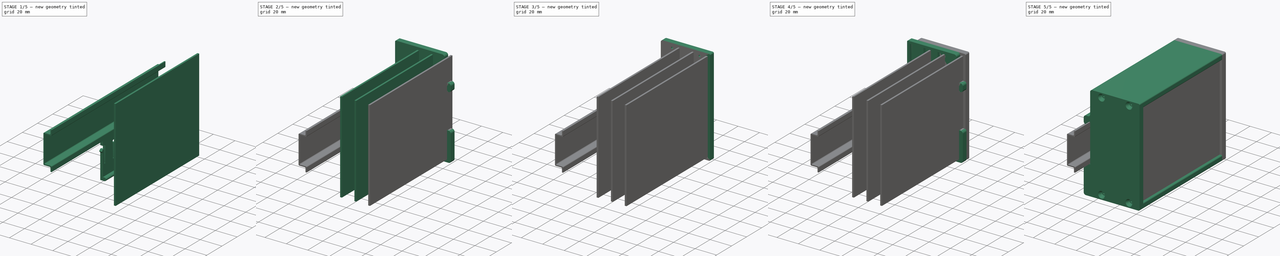
[diagram: build sequence overview — one tinted view per stage of 5, left to right]
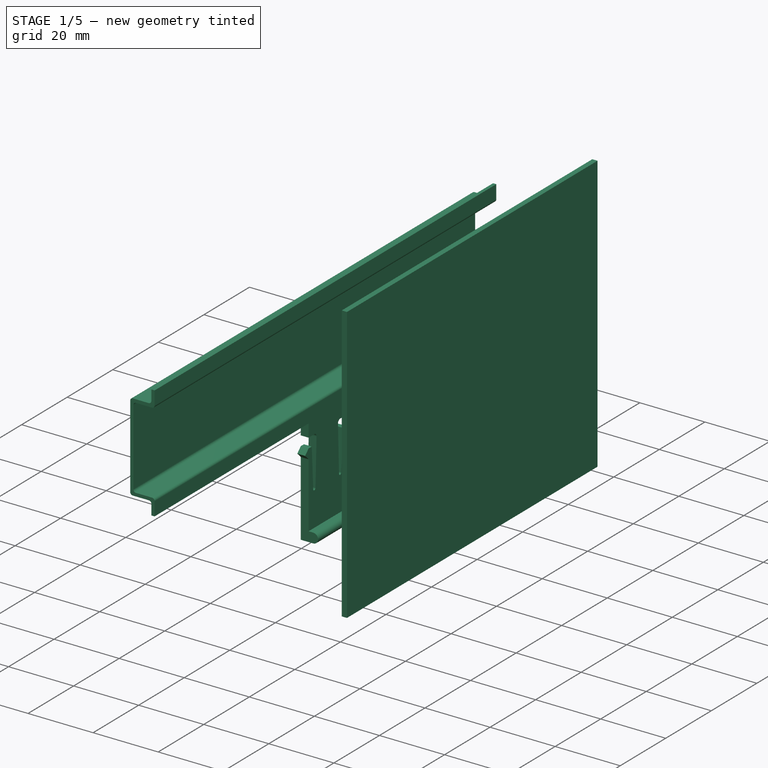
[diagram: stage 1 of 5 — iso view after this stage's code; geometry added in this stage tinted green]
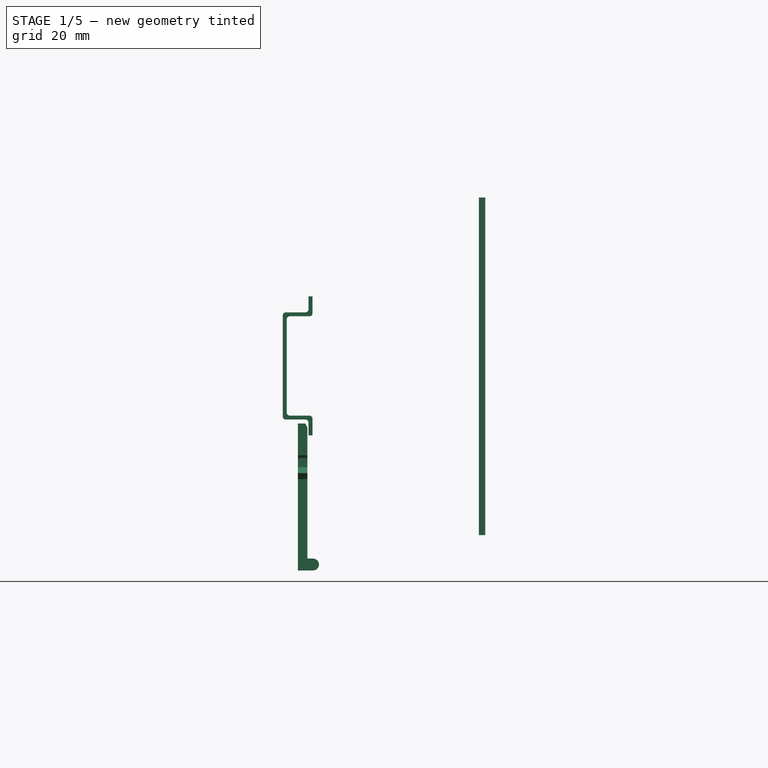
[diagram: stage 1 of 5 — front view after this stage's code; geometry added in this stage tinted green]
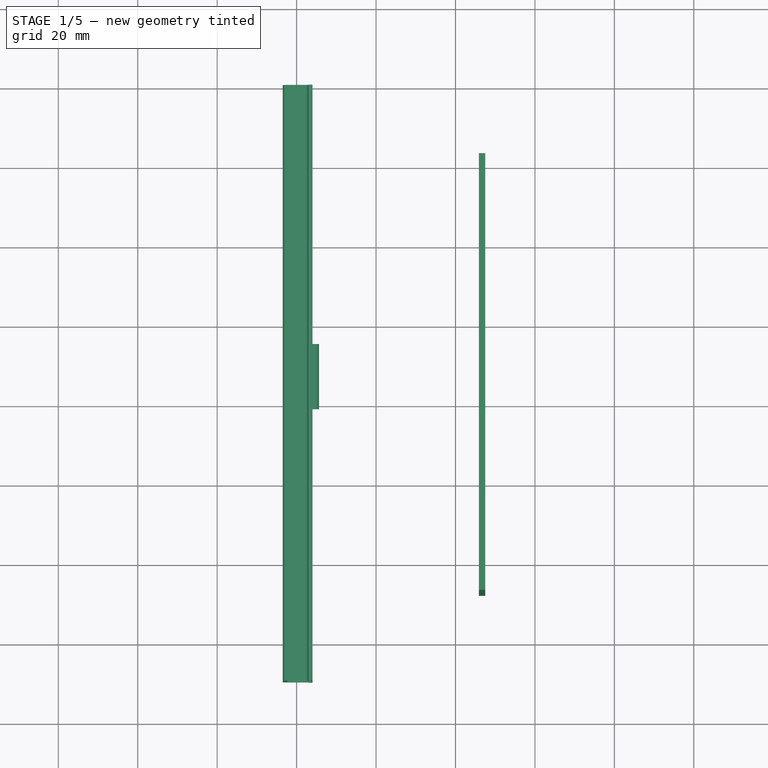
[diagram: stage 1 of 5 — top view after this stage's code; geometry added in this stage tinted green]
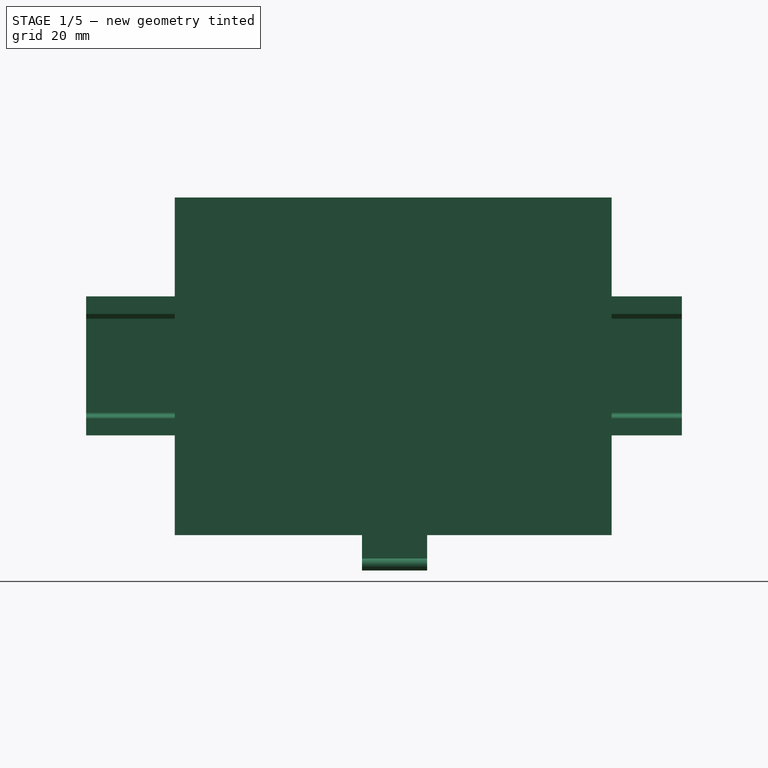
[diagram: stage 1 of 5 — right view after this stage's code; geometry added in this stage tinted green]
FCSTD DOCUMENT  (FreeCAD 0.19R24291 (Git))
Label: Корпус на DIN рейку
License: All rights reserved
LicenseURL: http://en.wikipedia.org/wiki/All_rights_reserved
objects: Sketcher::SketchObject×21, Part::Extrusion×13, Part::Cut×12, Part::Revolution×8, Part::MultiFuse×1
note: 55 computed .brp shape members not serialized (recipe doc carries the construction recipe); baked Part::Feature solids carry a one-line shape summary decoded from their .brp

FEATURE [Sketcher::SketchObject] Sketch020
  FullyConstrained = false
  Placement = pos=(0,0,0) rot=(0.57735,0.57735,0.57735;2.0944rad)
  sketch-geometry (4):
    g0: LineSegment StartX=17.5023 StartY=-36.9981 StartZ=0 EndX=127.502 EndY=-36.9981 EndZ=0
    g1: LineSegment StartX=127.502 StartY=-36.9981 StartZ=0 EndX=127.502 EndY=48.0019 EndZ=0
    g2: LineSegment StartX=127.502 StartY=48.0019 StartZ=0 EndX=17.5023 EndY=48.0019 EndZ=0
    g3: LineSegment StartX=17.5023 StartY=48.0019 StartZ=0 EndX=17.5023 EndY=-36.9981 EndZ=0
  constraints (11):
    c: Horizontal(g0)
    c: Coincident(g1,g0)
    c: Vertical(g1)
    c: Coincident(g2,g1)
    c: Horizontal(g2)
    c: Coincident(g3,g0)
    c: Vertical(g3)
    c: Equal(g3,g1)
    c: Equal(g2,g0)
    c: Distance(g3) = 85
    c: Distance(g2) = 110
FEATURE [Part::Extrusion] Extrude008  label="плата 3"
  Base = -> Sketch020
  Dir = (1,0,0)
  DirMode = 2
  FaceMakerClass = Part::FaceMakerBullseye
  LengthFwd = 1.6
  LengthRev = 0
  Placement = pos=(45.9,-125.33,39.5) rot=(0,0,1;0rad)
  Solid = true
  Symmetric = false
FEATURE [Sketcher::SketchObject] Sketch002
  FullyConstrained = false
  Placement = pos=(0,0,0) rot=(0.57735,0.57735,0.57735;2.0944rad)
  sketch-geometry (4):
    g0: LineSegment StartX=0 StartY=0 StartZ=0 EndX=3 EndY=0 EndZ=0
    g1: LineSegment StartX=3 StartY=0 StartZ=0 EndX=3 EndY=3.9 EndZ=0
    g2: LineSegment StartX=0 StartY=0 StartZ=0 EndX=0 EndY=3.9 EndZ=0
    g3: ArcOfCircle CenterX=1.5 CenterY=3.82014 CenterZ=0 NormalX=0 NormalY=0 NormalZ=1 AngleXU=0 Radius=1.50212 StartAngle=0.0531869 EndAngle=3.08841
  constraints (11):
    c: PointOnObject(g0,g-1)
    c: Coincident(g1,g0)
    c: Vertical(g1)
    c: Vertical(g2)
    c: Coincident(g3,g1)
    c: Distance(g2) = 3.9
    c: Distance(g1) = 3.9
    c: Distance(g0) = 3
    c: Coincident(g3,g2)
    c: Coincident(g2,g0)
    c: Coincident(g0,g-1)
FEATURE [Sketcher::SketchObject] Sketch021
  FullyConstrained = false
  Placement = pos=(0,0,0) rot=(0.57735,0.57735,0.57735;2.0944rad)
  sketch-geometry (6):
    g0: GeomPoint X=-1.0022 Y=2.4 Z=0
    g1: LineSegment StartX=0 StartY=1.9 StartZ=0 EndX=-1.0022 EndY=2.4 EndZ=0
    g2: LineSegment StartX=-1.0022 StartY=2.4 StartZ=0 EndX=0 EndY=2.4 EndZ=0
    g3: LineSegment StartX=0 StartY=2.4 StartZ=0 EndX=2.26875 EndY=2.4 EndZ=0
    g4: LineSegment StartX=0 StartY=1.9 StartZ=0 EndX=2.26875 EndY=1.9 EndZ=0
    g5: LineSegment StartX=2.26875 StartY=1.9 StartZ=0 EndX=2.26875 EndY=2.4 EndZ=0
  constraints (12):
    c: Coincident(g1,g0)
    c: Coincident(g2,g1)
    c: Horizontal(g2)
    c: Distance(g1) = 1.12
    c: Coincident(g3,g2)
    c: Horizontal(g3)
    c: Coincident(g4,g1)
    c: Horizontal(g4)
    c: Coincident(g5,g4)
    c: Vertical(g5)
    c: Coincident(g5,g3)
    c: Distance(g5) = 0.5
FEATURE [Part::Extrusion] Extrude009
  Base = -> Sketch021
  Dir = (1,0,0)
  DirMode = 2
  FaceMakerClass = Part::FaceMakerBullseye
  LengthFwd = 20
  LengthRev = 0
  Placement = pos=(0,37,0) rot=(0,0,1;0rad)
  Solid = true
  Symmetric = false
FEATURE [Part::Extrusion] Extrude011
  Base = -> Sketch002
  Dir = (1,0,0)
  DirMode = 2
  FaceMakerClass = Part::FaceMakerBullseye
  LengthFwd = 16.4
  LengthRev = 0
  Solid = true
  Symmetric = false
FEATURE [Sketcher::SketchObject] Sketch022
  FullyConstrained = false
  sketch-geometry (25):
    g0: LineSegment StartX=16.4 StartY=23 StartZ=0 EndX=17.8991 EndY=24.4991 EndZ=0
    g1: LineSegment StartX=17.8991 StartY=24.4991 StartZ=0 EndX=16.4 EndY=25.9981 EndZ=0
    g2: LineSegment StartX=16.4 StartY=25.9981 StartZ=0 EndX=15 EndY=25.9981 EndZ=0
    g3: LineSegment StartX=15 StartY=25.9981 StartZ=0 EndX=14.3657 EndY=13.8947 EndZ=0
    g4: GeomPoint X=13.3657 Y=13.8947 Z=0
    g5: GeomPoint X=13.8657 Y=13.8947 Z=0
    g6: ArcOfCircle CenterX=13.8657 CenterY=13.8947 CenterZ=0 NormalX=0 NormalY=0 NormalZ=1 AngleXU=0 Radius=0.5 StartAngle=3.14159 EndAngle=6.28319
    g7: LineSegment StartX=13.3657 StartY=13.8947 StartZ=0 EndX=12.9 EndY=27.9971 EndZ=0
    g8: GeomPoint X=16.4 Y=28.9971 Z=0
    g9: LineSegment StartX=16.4 StartY=28.9971 StartZ=0 EndX=13.9 EndY=28.9971 EndZ=0
    g10: LineSegment StartX=16.4 StartY=28.9971 StartZ=0 EndX=16.4 EndY=36.9971 EndZ=0
    g11: LineSegment StartX=16.4 StartY=36.9971 StartZ=0 EndX=1.07e-14 EndY=36.9971 EndZ=0
    g12: ArcOfCircle CenterX=13.9 CenterY=27.9971 CenterZ=0 NormalX=0 NormalY=0 NormalZ=1 AngleXU=0 Radius=1 StartAngle=1.5708 EndAngle=3.14159
    g13: LineSegment StartX=1.07e-14 StartY=36.9971 StartZ=0 EndX=1.07e-14 EndY=28.9971 EndZ=0
    g14: LineSegment StartX=2.5 StartY=28.9971 StartZ=0 EndX=1.07e-14 EndY=28.9971 EndZ=0
    g15: ArcOfCircle CenterX=2.5 CenterY=27.9971 CenterZ=0 NormalX=0 NormalY=0 NormalZ=1 AngleXU=0 Radius=1 StartAngle=0 EndAngle=1.5708
    g16: LineSegment StartX=3.03431 StartY=13.8947 StartZ=0 EndX=3.5 EndY=27.9971 EndZ=0
    g17: LineSegment StartX=0 StartY=23 StartZ=0 EndX=-1.49907 EndY=24.4991 EndZ=0
    g18: LineSegment StartX=-1.49907 StartY=24.4991 StartZ=0 EndX=7e-16 EndY=25.9981 EndZ=0
    g19: LineSegment StartX=1.4 StartY=25.9981 StartZ=0 EndX=7e-16 EndY=25.9981 EndZ=0
    g20: LineSegment StartX=1.4 StartY=25.9981 StartZ=0 EndX=2.03431 EndY=13.8947 EndZ=0
    g21: ArcOfCircle CenterX=2.53431 CenterY=13.8947 CenterZ=0 NormalX=0 NormalY=0 NormalZ=1 AngleXU=0 Radius=0.5 StartAngle=3.14159 EndAngle=6.28319
    g22: LineSegment StartX=16.4 StartY=23 StartZ=0 EndX=16.4 EndY=0 EndZ=0
    g23: LineSegment StartX=0 StartY=0 StartZ=0 EndX=16.4 EndY=0 EndZ=0
    g24: LineSegment StartX=0 StartY=0 StartZ=0 EndX=0 EndY=23 EndZ=0
  constraints (64):
    c: Coincident(g1,g0)
    c: Coincident(g2,g1)
    c: Coincident(g3,g2)
    c: Coincident(g6,g5)
    c: Coincident(g7,g4)
    c: Coincident(g6,g3)
    c: Coincident(g9,g8)
    c: Coincident(g10,g9)
    c: Coincident(g11,g10)
    c: Coincident(g6,g7)
    c: Coincident(g12,g9)
    c: Coincident(g12,g7)
    c: Coincident(g13,g11)
    c: Coincident(g13,g14)
    c: Coincident(g15,g14)
    c: Coincident(g16,g15)
    c: Coincident(g18,g17)
    c: Coincident(g19,g18)
    c: Coincident(g20,g19)
    c: Coincident(g21,g20)
    c: Coincident(g21,g16)
    c: Coincident(g22,g23)
    c: Coincident(g22,g0)
    c: Coincident(g17,g24)
    c: Horizontal(g23)
    c: Vertical(g22)
    c: Horizontal(g2)
    c: Horizontal(g9)
    c: Vertical(g10)
    c: Horizontal(g11)
    c: Vertical(g13)
    c: Horizontal(g14)
    c: Horizontal(g19)
    c: Vertical(g24)
    c: Angle(g17,g18) = 1.5708
    c: Angle(g1,g0) = 1.5708
    c: Distance(g1) = 2.12
    c: Distance(g0) = 2.12
    c: Distance(g17) = 2.12
    c: Distance(g18) = 2.12
    c: Distance(g14) = 2.5
    c: Distance(g9) = 2.5
    c: Distance(g22) = 23
    c: Distance(g24) = 23
    c: Distance(g19) = 1.4
    c: Distance(g2) = 1.4
    c: Distance(g10) = 8
    c: Distance(g13) = 8
    c: Distance(g11) = 16.4
    c: Angle(g17,g24) = 2.35619
    c: Coincident(g23,g24)
    c: Coincident(g23,g-1)
    c: Radius(g6) = 0.5
    c: Radius(g21) = 0.5
    c: Distance(g7) = 14.11
    c: Distance(g3) = 12.12
    c: Distance(g20) = 12.12
    c: Distance(g16) = 14.11
    c: Radius(g15) = 1
    c: Radius(g12) = 1
    c: Angle(g19,g20) = 1.62316
    c: Angle(g3,g2) = 1.62316
    c: Distance(g23) = 16.4
    c: Angle(g22,g0) = 2.35619
FEATURE [Part::Extrusion] Extrude010
  Base = -> Sketch022
  Dir = (0,0,1)
  DirMode = 2
  FaceMakerClass = Part::FaceMakerBullseye
  LengthFwd = 2.4
  LengthRev = 0
  Solid = true
  Symmetric = false
FEATURE [Part::Cut] Cut015
  Base = -> Extrude010
  Tool = -> Extrude009
FEATURE [Part::MultiFuse] Fusion  label="защёлка"
  Placement = pos=(0.3,-60.7,-6.4) rot=(0.57735,0.57735,0.57735;2.0944rad)
  Shapes = -> [Cut015,Extrude011]
FEATURE [Sketcher::SketchObject] Sketch023
  FullyConstrained = true
  Placement = pos=(0,0,0) rot=(1,0,0;1.5708rad)
  sketch-geometry (36):
    g0: LineSegment StartX=-1 StartY=35 StartZ=0 EndX=-6.98313e-11 EndY=35 EndZ=0
    g1: LineSegment StartX=-6.98311e-11 StartY=35 StartZ=0 EndX=-6.98311e-11 EndY=30.8 EndZ=0
    g2: LineSegment StartX=-0.8 StartY=30 StartZ=0 EndX=-5.7 EndY=30 EndZ=0
    g3: LineSegment StartX=-1 StartY=35 StartZ=0 EndX=-1 EndY=31.8 EndZ=0
    g4: LineSegment StartX=-1.8 StartY=31 StartZ=0 EndX=-6.7 EndY=31 EndZ=0
    g5: LineSegment StartX=-1.8 StartY=31 StartZ=0 EndX=-1.8 EndY=31.8 EndZ=0
    g6: LineSegment StartX=-1.8 StartY=31.8 StartZ=0 EndX=-1 EndY=31.8 EndZ=0
    g7: ArcOfCircle CenterX=-1.8 CenterY=31.8 CenterZ=0 NormalX=0 NormalY=0 NormalZ=1 AngleXU=0 Radius=0.8 StartAngle=4.71239 EndAngle=6.28319
    g8: ArcOfCircle CenterX=-0.8 CenterY=30.8 CenterZ=0 NormalX=0 NormalY=0 NormalZ=1 AngleXU=0 Radius=0.8 StartAngle=4.71239 EndAngle=6.28319
    g9: LineSegment StartX=-0.8 StartY=30 StartZ=0 EndX=-0.8 EndY=30.8 EndZ=0
    g10: LineSegment StartX=-0.8 StartY=30.8 StartZ=0 EndX=-6.98311e-11 EndY=30.8 EndZ=0
    g11: LineSegment StartX=-5.7 StartY=30 StartZ=0 EndX=-5.7 EndY=29.2 EndZ=0
    g12: LineSegment StartX=-5.7 StartY=29.2 StartZ=0 EndX=-6.5 EndY=29.2 EndZ=0
    g13: LineSegment StartX=-6.7 StartY=31 StartZ=0 EndX=-6.7 EndY=30.2 EndZ=0
    g14: LineSegment StartX=-6.7 StartY=30.2 StartZ=0 EndX=-7.5 EndY=30.2 EndZ=0
    g15: ArcOfCircle CenterX=-6.7 CenterY=30.2 CenterZ=0 NormalX=0 NormalY=0 NormalZ=1 AngleXU=0 Radius=0.8 StartAngle=1.5708 EndAngle=3.14159
    g16: ArcOfCircle CenterX=-5.7 CenterY=29.2 CenterZ=0 NormalX=0 NormalY=0 NormalZ=1 AngleXU=0 Radius=0.8 StartAngle=1.5708 EndAngle=3.14159
    g17: LineSegment StartX=-7.5 StartY=30.2 StartZ=0 EndX=-7.5 EndY=4.8 EndZ=0
    g18: LineSegment StartX=-6.5 StartY=29.2 StartZ=0 EndX=-6.5 EndY=5.8 EndZ=0
    g19: ArcOfCircle CenterX=-5.7 CenterY=5.8 CenterZ=0 NormalX=0 NormalY=0 NormalZ=1 AngleXU=0 Radius=0.8 StartAngle=3.14159 EndAngle=4.71239
    g20: ArcOfCircle CenterX=-6.7 CenterY=4.8 CenterZ=0 NormalX=0 NormalY=0 NormalZ=1 AngleXU=0 Radius=0.8 StartAngle=3.14159 EndAngle=4.71239
    g21: LineSegment StartX=-7.5 StartY=4.8 StartZ=0 EndX=-6.7 EndY=4.8 EndZ=0
    g22: LineSegment StartX=-6.7 StartY=4 StartZ=0 EndX=-6.7 EndY=4.8 EndZ=0
    g23: LineSegment StartX=-6.5 StartY=5.8 StartZ=0 EndX=-5.7 EndY=5.8 EndZ=0
    g24: LineSegment StartX=-5.7 StartY=5.8 StartZ=0 EndX=-5.7 EndY=5 EndZ=0
    g25: LineSegment StartX=-5.7 StartY=5 StartZ=0 EndX=-0.8 EndY=5 EndZ=0
    g26: LineSegment StartX=-6.7 StartY=4 StartZ=0 EndX=-1.8 EndY=4 EndZ=0
    g27: ArcOfCircle CenterX=-0.8 CenterY=4.2 CenterZ=0 NormalX=0 NormalY=0 NormalZ=1 AngleXU=0 Radius=0.8 StartAngle=0 EndAngle=1.5708
    g28: ArcOfCircle CenterX=-1.8 CenterY=3.2 CenterZ=0 NormalX=0 NormalY=0 NormalZ=1 AngleXU=0 Radius=0.8 StartAngle=0 EndAngle=1.5708
    g29: LineSegment StartX=0 StartY=4.2 StartZ=0 EndX=-0.8 EndY=4.2 EndZ=0
    g30: LineSegment StartX=-0.8 StartY=5 StartZ=0 EndX=-0.8 EndY=4.2 EndZ=0
    g31: LineSegment StartX=-1.8 StartY=4 StartZ=0 EndX=-1.8 EndY=3.2 EndZ=0
    g32: LineSegment StartX=-1.8 StartY=3.2 StartZ=0 EndX=-1 EndY=3.2 EndZ=0
    g33: LineSegment StartX=-1 StartY=3.2 StartZ=0 EndX=-1 EndY=0 EndZ=0
    g34: LineSegment StartX=-1 StartY=0 StartZ=0 EndX=0 EndY=0 EndZ=0
    g35: LineSegment StartX=0 StartY=0 StartZ=0 EndX=0 EndY=4.2 EndZ=0
  constraints (99):
    c: Coincident(g1,g0)
    c: Vertical(g1)
    c: Horizontal(g2)
    c: Coincident(g3,g0)
    c: Vertical(g3)
    c: Horizontal(g4)
    c: Horizontal(g0)
    c: Coincident(g5,g4)
    c: Vertical(g5)
    c: Coincident(g6,g5)
    c: Horizontal(g6)
    c: Coincident(g3,g6)
    c: Coincident(g7,g5)
    c: Coincident(g7,g4)
    c: Coincident(g7,g3)
    c: Coincident(g8,g1)
    c: Coincident(g8,g2)
    c: Coincident(g9,g2)
    c: Coincident(g9,g8)
    c: Coincident(g10,g8)
    c: Coincident(g10,g1)
    c: Horizontal(g10)
    c: Vertical(g9)
    c: Coincident(g11,g2)
    c: Vertical(g11)
    c: Coincident(g12,g11)
    c: Coincident(g13,g4)
    c: Vertical(g13)
    c: Coincident(g14,g13)
    c: Horizontal(g14)
    c: Coincident(g15,g13)
    c: Coincident(g15,g4)
    c: Coincident(g15,g14)
    c: Coincident(g16,g11)
    c: Coincident(g16,g2)
    c: Coincident(g16,g12)
    c: Horizontal(g12)
    c: Coincident(g17,g15)
    c: Vertical(g17)
    c: Coincident(g18,g16)
    c: Vertical(g18)
    c: Coincident(g19,g18)
    c: Coincident(g20,g17)
    c: Coincident(g21,g17)
    c: Horizontal(g21)
    c: Coincident(g21,g20)
    c: Coincident(g22,g20)
    c: Coincident(g22,g20)
    c: Coincident(g23,g18)
    c: Coincident(g23,g19)
    c: Horizontal(g23)
    c: Coincident(g24,g19)
    c: Coincident(g24,g19)
    c: Vertical(g22)
    c: Vertical(g24)
    c: Coincident(g25,g19)
    c: Horizontal(g25)
    c: Coincident(g26,g20)
    c: Horizontal(g26)
    c: Coincident(g27,g25)
    c: Coincident(g28,g26)
    c: Coincident(g29,g27)
    c: Coincident(g29,g27)
    c: Coincident(g30,g25)
    c: Coincident(g30,g27)
    c: Coincident(g31,g26)
    c: Coincident(g31,g28)
    c: Coincident(g32,g28)
    c: Coincident(g32,g28)
    c: Coincident(g33,g28)
    c: Vertical(g33)
    c: Coincident(g34,g33)
    c: Horizontal(g34)
    c: Coincident(g35,g34)
    c: Coincident(g35,g27)
    c: Vertical(g35)
    c: Vertical(g31)
    c: Horizontal(g32)
    c: Vertical(g30)
    c: Horizontal(g29)
    c: Equal(g7,g8)
    c: Equal(g15,g16)
    c: Equal(g20,g19)
    c: Equal(g28,g27)
    c: Equal(g34,g0)
    c: Equal(g25,g2)
    c: Radius(g8) = 0.8
    c: Radius(g16) = 0.8
    c: Radius(g19) = 0.8
    c: Radius(g27) = 0.8
    c: Equal(g33,g3)
    c: Equal(g1,g35)
    c: Distance(g1) = 4.2
    c: Distance(g4) = 4.9
    c: Distance(g2) = 4.9
    c: Distance(g18) = 23.4
    c: Distance(g17) = 25.4
    c: Distance(g0) = 1
    c: Coincident(g34,g-1)
FEATURE [Part::Extrusion] Extrude012  label="DIN-рейка"
  Base = -> Sketch023
  Dir = (0,-1,2e-16)
  DirMode = 2
  FaceMakerClass = Part::FaceMakerBullseye
  LengthFwd = 150
  LengthRev = 0
  Placement = pos=(4,19.85,27.6) rot=(0,0,1;0rad)
  Solid = true
  Symmetric = false
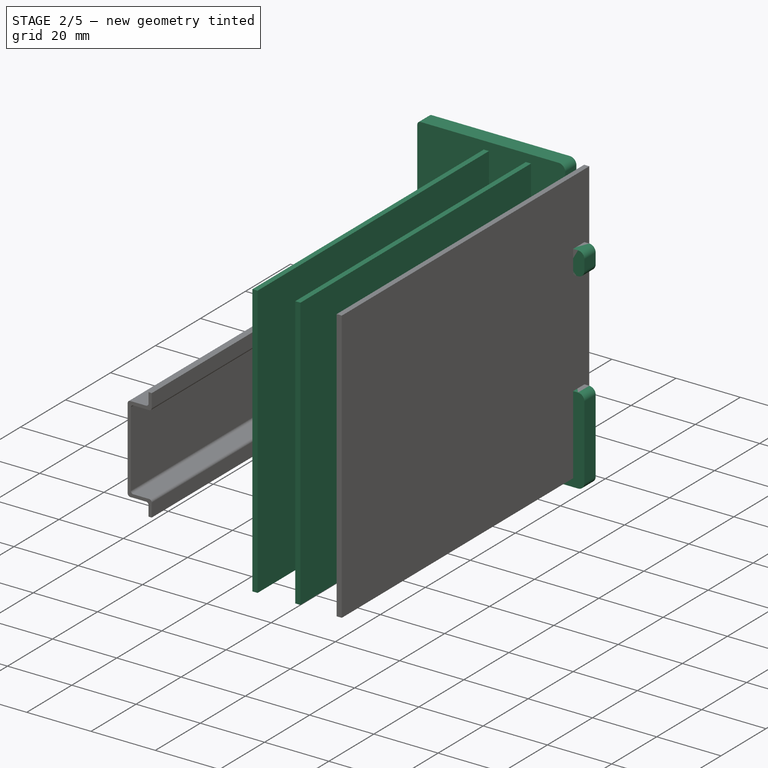
[diagram: stage 2 of 5 — iso view after this stage's code; geometry added in this stage tinted green]
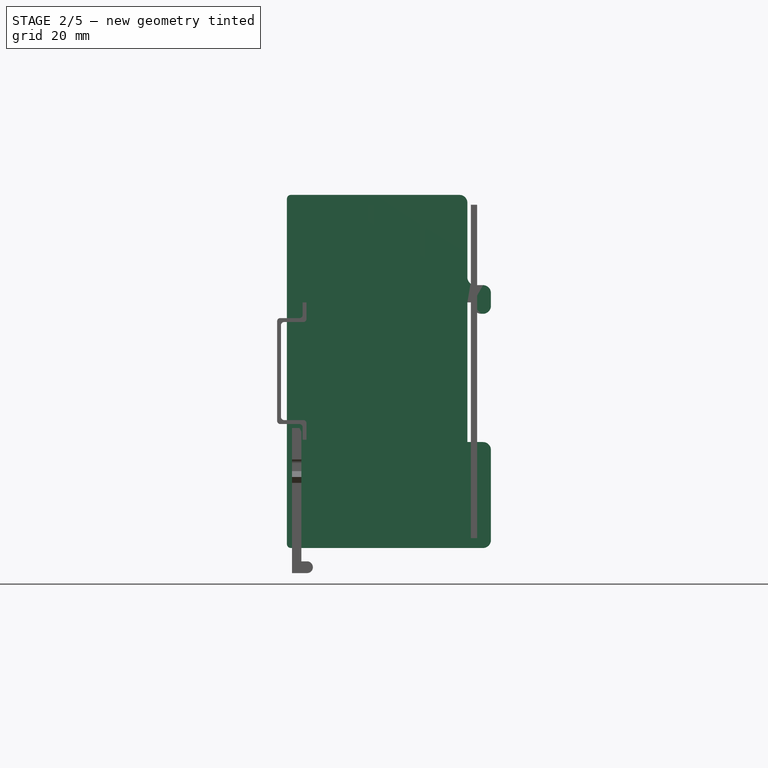
[diagram: stage 2 of 5 — front view after this stage's code; geometry added in this stage tinted green]
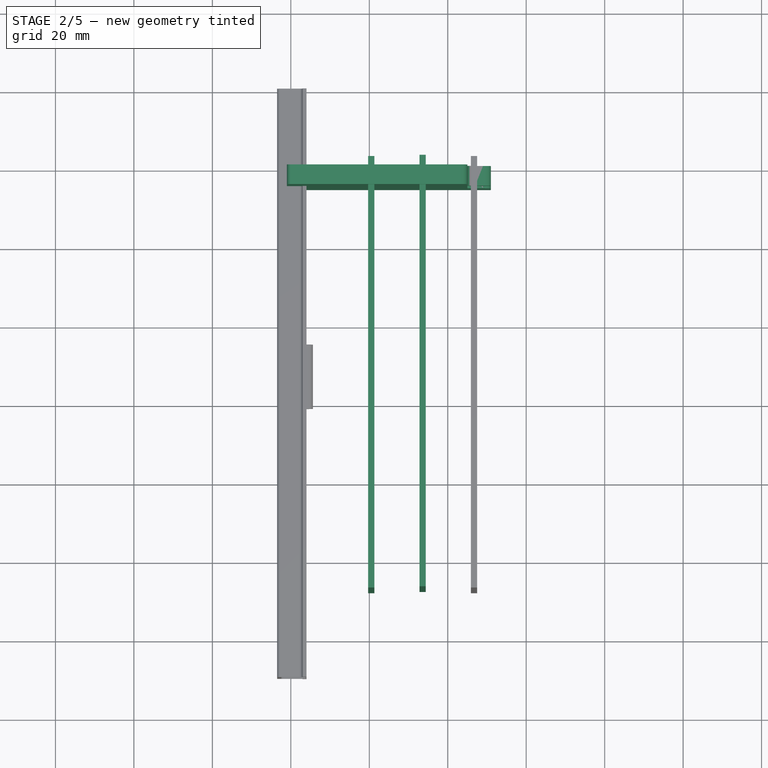
[diagram: stage 2 of 5 — top view after this stage's code; geometry added in this stage tinted green]
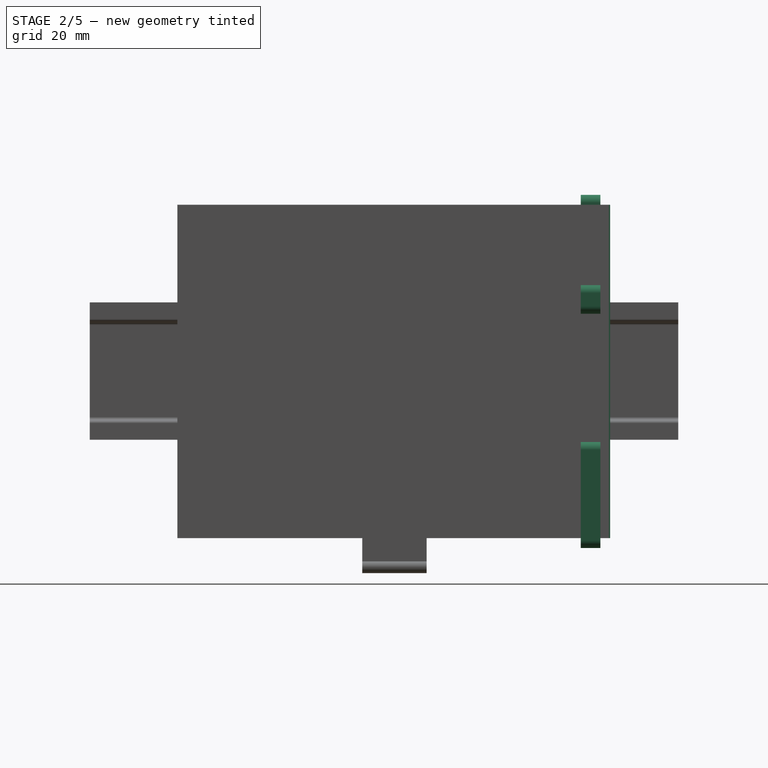
[diagram: stage 2 of 5 — right view after this stage's code; geometry added in this stage tinted green]
FEATURE [Sketcher::SketchObject] Sketch012
  FullyConstrained = true
  sketch-geometry (7):
    g0: LineSegment StartX=0 StartY=-5.00042 StartZ=0 EndX=0 EndY=0 EndZ=0
    g1: LineSegment StartX=0 StartY=0 StartZ=0 EndX=-3.14912 EndY=0 EndZ=0
    g2: LineSegment StartX=-3.14912 StartY=0 StartZ=0 EndX=-3.14912 EndY=-0.3 EndZ=0
    g3: LineSegment StartX=-3.14912 StartY=-0.3 StartZ=0 EndX=-1.75 EndY=-3.30042 EndZ=0
    g4: LineSegment StartX=-0.85 StartY=-3.30042 StartZ=0 EndX=-0.85 EndY=-5.00042 EndZ=0
    g5: LineSegment StartX=-0.85 StartY=-5.00042 StartZ=0 EndX=0 EndY=-5.00042 EndZ=0
    g6: LineSegment StartX=-0.85 StartY=-3.30042 StartZ=0 EndX=-1.75 EndY=-3.30042 EndZ=0
  constraints (20):
    c: Vertical(g0)
    c: Coincident(g1,g0)
    c: Horizontal(g1)
    c: Coincident(g2,g1)
    c: Vertical(g2)
    c: Coincident(g3,g2)
    c: Vertical(g4)
    c: Coincident(g5,g4)
    c: Horizontal(g5)
    c: Distance(g5) = 0.85
    c: Distance(g3) = 3.3106
    c: Coincident(g6,g4)
    c: Coincident(g6,g3)
    c: Horizontal(g6)
    c: Angle(g6,g3) = 2.00713
    c: Distance(g6) = 0.9
    c: Distance(g2) = 0.3
    c: Distance(g4) = 1.7
    c: Coincident(g0,g5)
    c: Coincident(g0,g-1)
FEATURE [Sketcher::SketchObject] Sketch013
  FullyConstrained = false
  Placement = pos=(0,0,0) rot=(1,0,0;1.5708rad)
  sketch-geometry (21):
    g0: LineSegment StartX=-6e-16 StartY=0 StartZ=0 EndX=49 EndY=0 EndZ=0
    g1: ArcOfCircle CenterX=49 CenterY=2 CenterZ=0 NormalX=0 NormalY=0 NormalZ=1 AngleXU=0 Radius=2 StartAngle=4.71239 EndAngle=6.28319
    g2: LineSegment StartX=51 StartY=2 StartZ=0 EndX=51 EndY=25 EndZ=0
    g3: LineSegment StartX=49 StartY=27 StartZ=0 EndX=45 EndY=27 EndZ=0
    g4: LineSegment StartX=45 StartY=27 StartZ=0 EndX=45 EndY=62.6 EndZ=0
    g5: LineSegment StartX=45 StartY=62.6 StartZ=0 EndX=46.5 EndY=62.6 EndZ=0
    g6: LineSegment StartX=46.5 StartY=62.6 StartZ=0 EndX=46.5 EndY=61.7 EndZ=0
    g7: LineSegment StartX=48.5 StartY=59.7 StartZ=0 EndX=49 EndY=59.7 EndZ=0
    g8: LineSegment StartX=51 StartY=61.7 StartZ=0 EndX=51 EndY=65 EndZ=0
    g9: LineSegment StartX=49 StartY=67 StartZ=0 EndX=47 EndY=67 EndZ=0
    g10: LineSegment StartX=45 StartY=69 StartZ=0 EndX=45 EndY=88 EndZ=0
    g11: LineSegment StartX=43 StartY=90 StartZ=0 EndX=0 EndY=90 EndZ=0
    g12: LineSegment StartX=-1 StartY=1 StartZ=0 EndX=-1 EndY=89 EndZ=0
    g13: ArcOfCircle CenterX=-4e-16 CenterY=1 CenterZ=0 NormalX=0 NormalY=0 NormalZ=1 AngleXU=0 Radius=1 StartAngle=3.14159 EndAngle=4.71239
    g14: ArcOfCircle CenterX=49 CenterY=25 CenterZ=0 NormalX=0 NormalY=0 NormalZ=1 AngleXU=0 Radius=2 StartAngle=0 EndAngle=1.5708
    g15: ArcOfCircle CenterX=48.5 CenterY=61.7 CenterZ=0 NormalX=0 NormalY=0 NormalZ=1 AngleXU=0 Radius=2 StartAngle=3.14159 EndAngle=4.71239
    g16: ArcOfCircle CenterX=49 CenterY=61.7 CenterZ=0 NormalX=0 NormalY=0 NormalZ=1 AngleXU=0 Radius=2 StartAngle=4.71239 EndAngle=6.28319
    g17: ArcOfCircle CenterX=49 CenterY=65 CenterZ=0 NormalX=0 NormalY=0 NormalZ=1 AngleXU=0 Radius=2 StartAngle=0 EndAngle=1.5708
    g18: ArcOfCircle CenterX=47 CenterY=69 CenterZ=0 NormalX=0 NormalY=0 NormalZ=1 AngleXU=0 Radius=2 StartAngle=3.14159 EndAngle=4.71239
    g19: ArcOfCircle CenterX=43 CenterY=88 CenterZ=0 NormalX=0 NormalY=0 NormalZ=1 AngleXU=0 Radius=2 StartAngle=0 EndAngle=1.5708
    g20: ArcOfCircle CenterX=8e-16 CenterY=89 CenterZ=0 NormalX=0 NormalY=0 NormalZ=1 AngleXU=0 Radius=1 StartAngle=1.5708 EndAngle=3.14159
  constraints (45):
    c: Coincident(g0,g-1)
    c: Horizontal(g0)
    c: Distance(g0) = 49
    c: Coincident(g1,g0)
    c: Radius(g1) = 2
    c: Vertical(g2)
    c: Horizontal(g3)
    c: Vertical(g4)
    c: Horizontal(g5)
    c: Vertical(g6)
    c: Horizontal(g7)
    c: Vertical(g8)
    c: Horizontal(g9)
    c: Vertical(g10)
    c: Vertical(g12)
    c: Coincident(g13,g0)
    c: Coincident(g14,g2)
    c: Coincident(g15,g6)
    c: Coincident(g16,g7)
    c: Coincident(g17,g8)
    c: Coincident(g18,g9)
    c: Coincident(g19,g10)
    c: Coincident(g20,g11)
    c: Coincident(g12,g13)
    c: Horizontal(g11)
    c: Radius(g13) = 1
    c: Coincident(g4,g3)
    c: Coincident(g6,g5)
    c: Coincident(g5,g4)
    c: Radius(g14) = 2
    c: Distance(g4) = 35.6
    c: Distance(g5) = 1.5
    c: Distance(g6) = 0.9
    c: Radius(g15) = 2
    c: Radius(g18) = 2
    c: Radius(g17) = 2
    c: Radius(g16) = 2
    c: Distance(g2) = 23
    c: Distance(g3) = 4
    c: Distance(g7) = 0.5
    c: Distance(g8) = 3.3
    c: Radius(g19) = 2
    c: Radius(g20) = 1
    c: Distance(g9) = 2
    c: Distance(g10) = 19
FEATURE [Part::Revolution] Revolve011
  Angle = 360
  Axis = (0,1,0)
  AxisLink = -> Sketch012 [Edge3]
  Base = (0,0,0)
  FaceMakerClass = Part::FaceMakerBullseye
  Placement = pos=(8.85,-5,4.1) rot=(0,0,1;3.14159rad)
  Solid = true
  Source = -> Sketch012
  Symmetric = false
FEATURE [Sketcher::SketchObject] Sketch014
  FullyConstrained = false
  Placement = pos=(0,0,0) rot=(1,0,0;1.5708rad)
  sketch-geometry (12):
    g0: LineSegment StartX=1.2 StartY=2.2 StartZ=0 EndX=3.4 EndY=2.2 EndZ=0
    g1: LineSegment StartX=3.4 StartY=2.2 StartZ=0 EndX=3.4 EndY=87.8 EndZ=0
    g2: LineSegment StartX=3.4 StartY=87.8 StartZ=0 EndX=1.2 EndY=87.8 EndZ=0
    g3: LineSegment StartX=1.2 StartY=87.8 StartZ=0 EndX=1.2 EndY=2.2 EndZ=0
    g4: LineSegment StartX=14.3 StartY=2.2 StartZ=0 EndX=16.5 EndY=2.2 EndZ=0
    g5: LineSegment StartX=16.5 StartY=2.2 StartZ=0 EndX=16.5 EndY=87.8 EndZ=0
    g6: LineSegment StartX=16.5 StartY=87.8 StartZ=0 EndX=14.3 EndY=87.8 EndZ=0
    g7: LineSegment StartX=14.3 StartY=87.8 StartZ=0 EndX=14.3 EndY=2.2 EndZ=0
    g8: LineSegment StartX=27.4 StartY=2.2 StartZ=0 EndX=29.6 EndY=2.2 EndZ=0
    g9: LineSegment StartX=29.6 StartY=2.2 StartZ=0 EndX=29.6 EndY=87.8 EndZ=0
    g10: LineSegment StartX=29.6 StartY=87.8 StartZ=0 EndX=27.4 EndY=87.8 EndZ=0
    g11: LineSegment StartX=27.4 StartY=87.8 StartZ=0 EndX=27.4 EndY=2.2 EndZ=0
  constraints (30):
    c: Horizontal(g0)
    c: Coincident(g1,g0)
    c: Vertical(g1)
    c: Coincident(g2,g1)
    c: Horizontal(g2)
    c: Coincident(g3,g2)
    c: Vertical(g3)
    c: Distance(g3) = 85.6
    c: Distance(g0) = 2.2
    c: Horizontal(g4)
    c: Coincident(g5,g4)
    c: Vertical(g5)
    c: Coincident(g6,g5)
    c: Horizontal(g6)
    c: Coincident(g7,g6)
    c: Vertical(g7)
    c: Equal(g3,g7) = 85.6
    c: Equal(g0,g4) = 2.2
    c: Horizontal(g8)
    c: Coincident(g9,g8)
    c: Vertical(g9)
    c: Coincident(g10,g9)
    c: Horizontal(g10)
    c: Coincident(g11,g10)
    c: Vertical(g11)
    c: Coincident(g4,g7)
    c: Coincident(g3,g0)
    c: Coincident(g8,g11)
    c: Distance(g11) = 85.6
    c: Distance(g8) = 2.2
FEATURE [Sketcher::SketchObject] Sketch015
  FullyConstrained = true
  sketch-geometry (7):
    g0: LineSegment StartX=0 StartY=-5.00042 StartZ=0 EndX=0 EndY=0 EndZ=0
    g1: LineSegment StartX=0 StartY=0 StartZ=0 EndX=-3.14912 EndY=0 EndZ=0
    g2: LineSegment StartX=-3.14912 StartY=0 StartZ=0 EndX=-3.14912 EndY=-0.3 EndZ=0
    g3: LineSegment StartX=-3.14912 StartY=-0.3 StartZ=0 EndX=-1.75 EndY=-3.30042 EndZ=0
    g4: LineSegment StartX=-0.85 StartY=-3.30042 StartZ=0 EndX=-0.85 EndY=-5.00042 EndZ=0
    g5: LineSegment StartX=-0.85 StartY=-5.00042 StartZ=0 EndX=0 EndY=-5.00042 EndZ=0
    g6: LineSegment StartX=-0.85 StartY=-3.30042 StartZ=0 EndX=-1.75 EndY=-3.30042 EndZ=0
  constraints (20):
    c: Vertical(g0)
    c: Coincident(g1,g0)
    c: Horizontal(g1)
    c: Coincident(g2,g1)
    c: Vertical(g2)
    c: Coincident(g3,g2)
    c: Vertical(g4)
    c: Coincident(g5,g4)
    c: Horizontal(g5)
    c: Distance(g5) = 0.85
    c: Distance(g3) = 3.3106
    c: Coincident(g6,g4)
    c: Coincident(g6,g3)
    c: Horizontal(g6)
    c: Angle(g6,g3) = 2.00713
    c: Distance(g6) = 0.9
    c: Distance(g2) = 0.3
    c: Distance(g4) = 1.7
    c: Coincident(g0,g5)
    c: Coincident(g0,g-1)
FEATURE [Part::Revolution] Revolve010
  Angle = 360
  Axis = (0,1,0)
  AxisLink = -> Sketch015 [Edge3]
  Base = (0,0,0)
  FaceMakerClass = Part::FaceMakerBullseye
  Placement = pos=(34.45,-5,85.9) rot=(0,0,1;3.14159rad)
  Solid = true
  Source = -> Sketch015
  Symmetric = false
FEATURE [Sketcher::SketchObject] Sketch017
  FullyConstrained = true
  sketch-geometry (7):
    g0: LineSegment StartX=0 StartY=-5.00042 StartZ=0 EndX=0 EndY=0 EndZ=0
    g1: LineSegment StartX=0 StartY=0 StartZ=0 EndX=-3.14912 EndY=0 EndZ=0
    g2: LineSegment StartX=-3.14912 StartY=0 StartZ=0 EndX=-3.14912 EndY=-0.3 EndZ=0
    g3: LineSegment StartX=-3.14912 StartY=-0.3 StartZ=0 EndX=-1.75 EndY=-3.30042 EndZ=0
    g4: LineSegment StartX=-0.85 StartY=-3.30042 StartZ=0 EndX=-0.85 EndY=-5.00042 EndZ=0
    g5: LineSegment StartX=-0.85 StartY=-5.00042 StartZ=0 EndX=0 EndY=-5.00042 EndZ=0
    g6: LineSegment StartX=-0.85 StartY=-3.30042 StartZ=0 EndX=-1.75 EndY=-3.30042 EndZ=0
  constraints (20):
    c: Vertical(g0)
    c: Coincident(g1,g0)
    c: Horizontal(g1)
    c: Coincident(g2,g1)
    c: Vertical(g2)
    c: Coincident(g3,g2)
    c: Vertical(g4)
    c: Coincident(g5,g4)
    c: Horizontal(g5)
    c: Distance(g5) = 0.85
    c: Distance(g3) = 3.3106
    c: Coincident(g6,g4)
    c: Coincident(g6,g3)
    c: Horizontal(g6)
    c: Angle(g6,g3) = 2.00713
    c: Distance(g6) = 0.9
    c: Distance(g2) = 0.3
    c: Distance(g4) = 1.7
    c: Coincident(g0,g5)
    c: Coincident(g0,g-1)
FEATURE [Part::Revolution] Revolve009
  Angle = 360
  Axis = (0,1,0)
  AxisLink = -> Sketch017 [Edge3]
  Base = (0,0,0)
  FaceMakerClass = Part::FaceMakerBullseye
  Placement = pos=(8.85,-5,85.9) rot=(0,0,1;3.14159rad)
  Solid = true
  Source = -> Sketch017
  Symmetric = false
FEATURE [Part::Extrusion] Extrude004
  Base = -> Sketch014
  Dir = (0,-1,3e-16)
  DirMode = 2
  FaceMakerClass = Part::FaceMakerBullseye
  LengthFwd = 2.8
  LengthRev = 0
  Solid = true
  Symmetric = false
FEATURE [Part::Extrusion] Extrude005
  Base = -> Sketch013
  Dir = (0,-1,3e-16)
  DirMode = 2
  FaceMakerClass = Part::FaceMakerBullseye
  LengthFwd = 5
  LengthRev = 0
  Solid = true
  Symmetric = false
FEATURE [Sketcher::SketchObject] Sketch018
  FullyConstrained = false
  Placement = pos=(0,0,0) rot=(0.57735,0.57735,0.57735;2.0944rad)
  sketch-geometry (4):
    g0: LineSegment StartX=17.5023 StartY=-36.9981 StartZ=0 EndX=127.502 EndY=-36.9981 EndZ=0
    g1: LineSegment StartX=127.502 StartY=-36.9981 StartZ=0 EndX=127.502 EndY=48.0019 EndZ=0
    g2: LineSegment StartX=127.502 StartY=48.0019 StartZ=0 EndX=17.5023 EndY=48.0019 EndZ=0
    g3: LineSegment StartX=17.5023 StartY=48.0019 StartZ=0 EndX=17.5023 EndY=-36.9981 EndZ=0
  constraints (11):
    c: Horizontal(g0)
    c: Coincident(g1,g0)
    c: Vertical(g1)
    c: Coincident(g2,g1)
    c: Horizontal(g2)
    c: Coincident(g3,g0)
    c: Vertical(g3)
    c: Equal(g3,g1)
    c: Equal(g2,g0)
    c: Distance(g3) = 85
    c: Distance(g2) = 110
FEATURE [Part::Extrusion] Extrude006  label="плата 1"
  Base = -> Sketch018
  Dir = (1,0,0)
  DirMode = 2
  FaceMakerClass = Part::FaceMakerBullseye
  LengthFwd = 1.6
  LengthRev = 0
  Placement = pos=(19.69,-125.33,39.5) rot=(0,0,1;0rad)
  Solid = true
  Symmetric = false
FEATURE [Sketcher::SketchObject] Sketch019
  FullyConstrained = false
  Placement = pos=(0,0,0) rot=(0.57735,0.57735,0.57735;2.0944rad)
  sketch-geometry (4):
    g0: LineSegment StartX=17.8339 StartY=-36.8208 StartZ=0 EndX=127.834 EndY=-36.8208 EndZ=0
    g1: LineSegment StartX=127.834 StartY=-36.8208 StartZ=0 EndX=127.834 EndY=48.1792 EndZ=0
    g2: LineSegment StartX=127.834 StartY=48.1792 StartZ=0 EndX=17.8339 EndY=48.1792 EndZ=0
    g3: LineSegment StartX=17.8339 StartY=48.1792 StartZ=0 EndX=17.8339 EndY=-36.8208 EndZ=0
  constraints (11):
    c: Horizontal(g0)
    c: Coincident(g1,g0)
    c: Vertical(g1)
    c: Coincident(g2,g1)
    c: Horizontal(g2)
    c: Coincident(g3,g0)
    c: Vertical(g3)
    c: Equal(g3,g1)
    c: Equal(g2,g0)
    c: Distance(g3) = 85
    c: Distance(g2) = 110
FEATURE [Part::Extrusion] Extrude007  label="плата2"
  Base = -> Sketch019
  Dir = (1,0,0)
  DirMode = 2
  FaceMakerClass = Part::FaceMakerBullseye
  LengthFwd = 1.6
  LengthRev = 0
  Placement = pos=(32.79,-125.33,39.32) rot=(0,0,1;0rad)
  Solid = true
  Symmetric = false
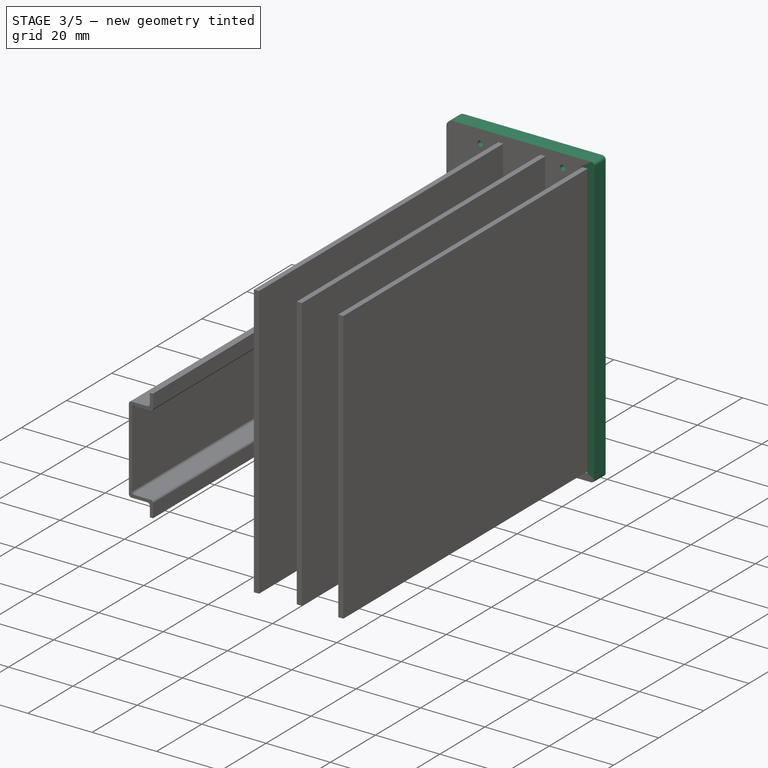
[diagram: stage 3 of 5 — iso view after this stage's code; geometry added in this stage tinted green]
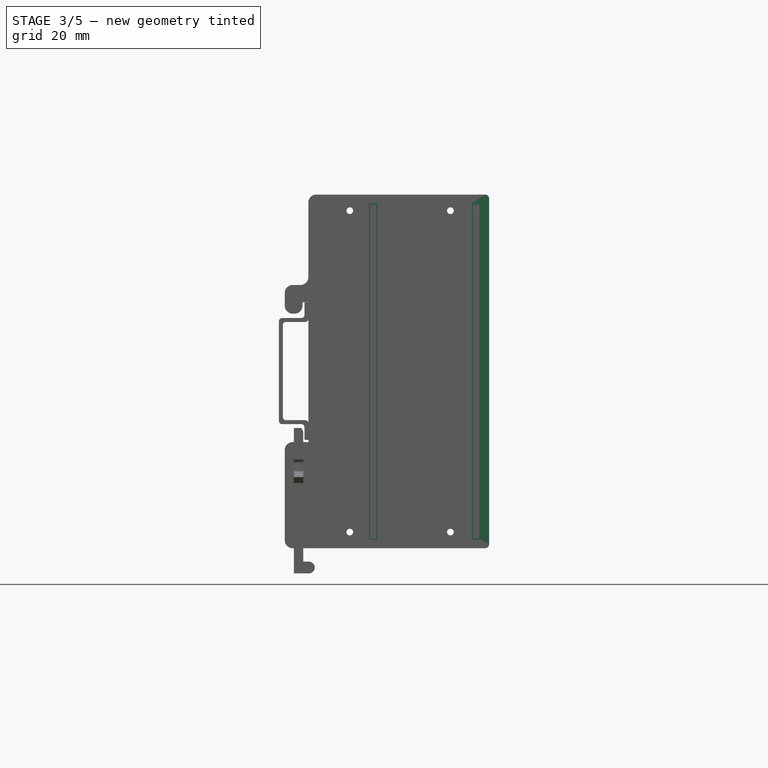
[diagram: stage 3 of 5 — front view after this stage's code; geometry added in this stage tinted green]
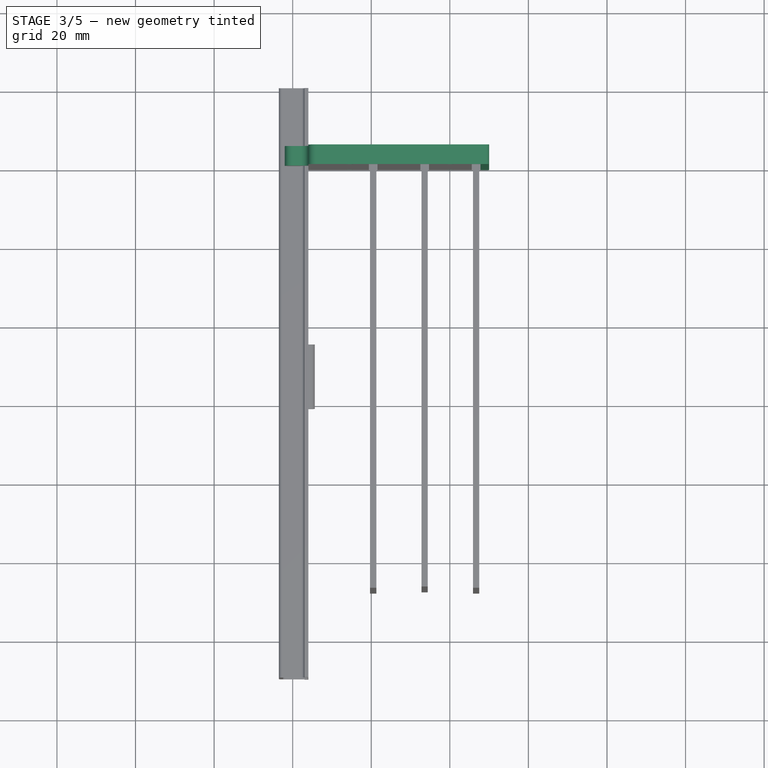
[diagram: stage 3 of 5 — top view after this stage's code; geometry added in this stage tinted green]
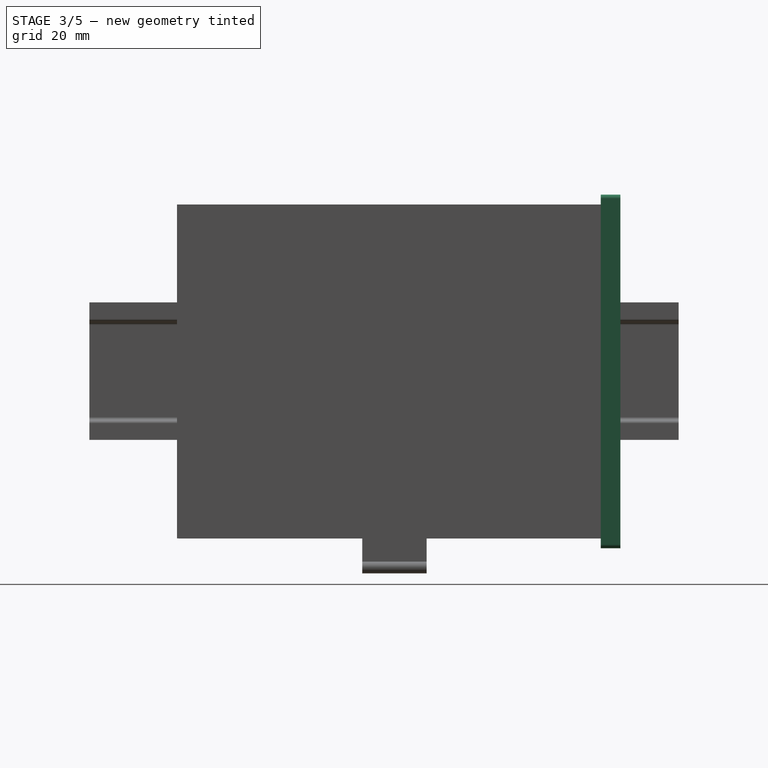
[diagram: stage 3 of 5 — right view after this stage's code; geometry added in this stage tinted green]
FEATURE [Sketcher::SketchObject] Sketch016
  FullyConstrained = true
  sketch-geometry (7):
    g0: LineSegment StartX=0 StartY=-5.00042 StartZ=0 EndX=0 EndY=0 EndZ=0
    g1: LineSegment StartX=0 StartY=0 StartZ=0 EndX=-3.14912 EndY=0 EndZ=0
    g2: LineSegment StartX=-3.14912 StartY=0 StartZ=0 EndX=-3.14912 EndY=-0.3 EndZ=0
    g3: LineSegment StartX=-3.14912 StartY=-0.3 StartZ=0 EndX=-1.75 EndY=-3.30042 EndZ=0
    g4: LineSegment StartX=-0.85 StartY=-3.30042 StartZ=0 EndX=-0.85 EndY=-5.00042 EndZ=0
    g5: LineSegment StartX=-0.85 StartY=-5.00042 StartZ=0 EndX=0 EndY=-5.00042 EndZ=0
    g6: LineSegment StartX=-0.85 StartY=-3.30042 StartZ=0 EndX=-1.75 EndY=-3.30042 EndZ=0
  constraints (20):
    c: Vertical(g0)
    c: Coincident(g1,g0)
    c: Horizontal(g1)
    c: Coincident(g2,g1)
    c: Vertical(g2)
    c: Coincident(g3,g2)
    c: Vertical(g4)
    c: Coincident(g5,g4)
    c: Horizontal(g5)
    c: Distance(g5) = 0.85
    c: Distance(g3) = 3.3106
    c: Coincident(g6,g4)
    c: Coincident(g6,g3)
    c: Horizontal(g6)
    c: Angle(g6,g3) = 2.00713
    c: Distance(g6) = 0.9
    c: Distance(g2) = 0.3
    c: Distance(g4) = 1.7
    c: Coincident(g0,g5)
    c: Coincident(g0,g-1)
FEATURE [Part::Revolution] Revolve008
  Angle = 360
  Axis = (0,1,0)
  AxisLink = -> Sketch016 [Edge3]
  Base = (0,0,0)
  FaceMakerClass = Part::FaceMakerBullseye
  Placement = pos=(34.45,-5,4.1) rot=(0,0,1;3.14159rad)
  Solid = true
  Source = -> Sketch016
  Symmetric = false
FEATURE [Part::Cut] Cut010
  Base = -> Extrude005
  Tool = -> Extrude004
FEATURE [Part::Cut] Cut013
  Base = -> Cut010
  Tool = -> Revolve011
FEATURE [Part::Cut] Cut014
  Base = -> Cut013
  Tool = -> Revolve010
FEATURE [Part::Cut] Cut012
  Base = -> Cut014
  Tool = -> Revolve009
FEATURE [Part::Cut] Cut011  label="крышка правая"
  Base = -> Cut012
  Placement = pos=(48.9922,0.00472,0.0179538) rot=(0,0,1;3.14159rad)
  Tool = -> Revolve008
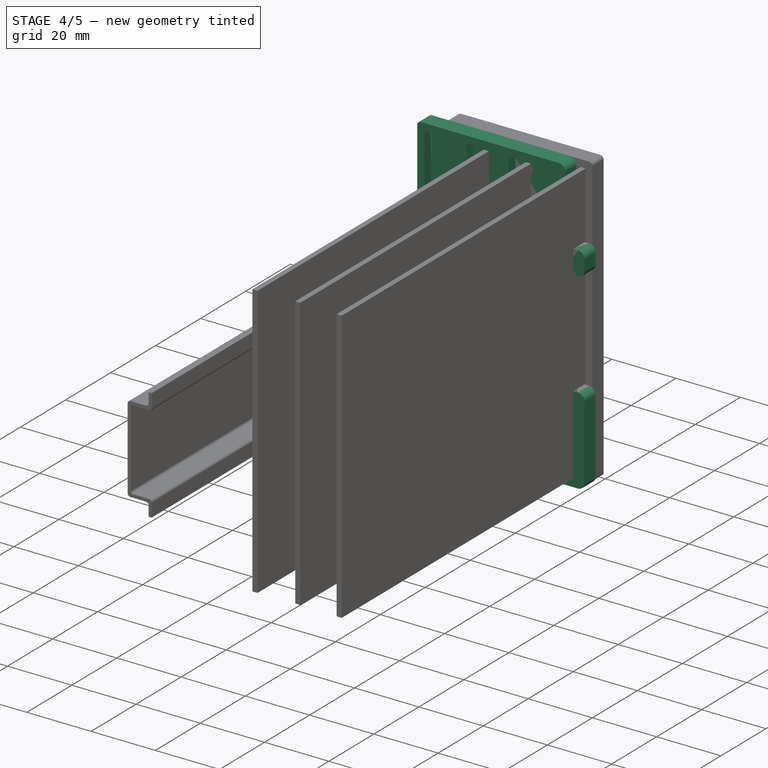
[diagram: stage 4 of 5 — iso view after this stage's code; geometry added in this stage tinted green]
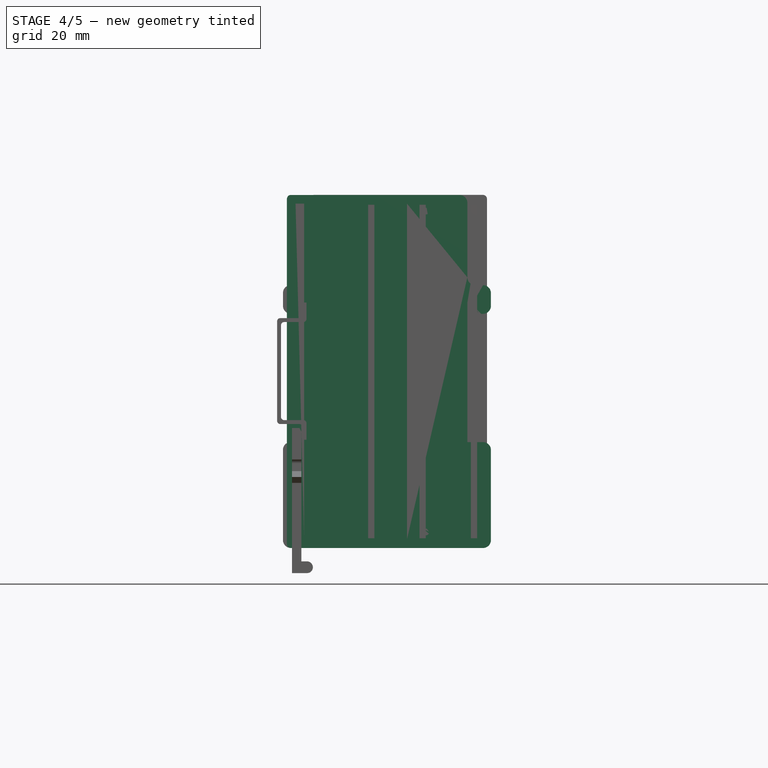
[diagram: stage 4 of 5 — front view after this stage's code; geometry added in this stage tinted green]
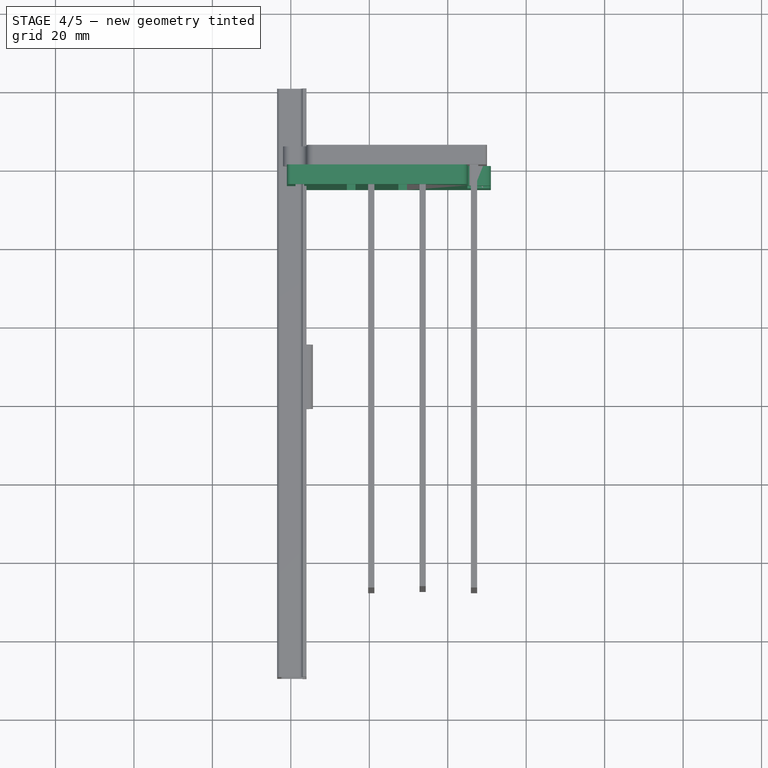
[diagram: stage 4 of 5 — top view after this stage's code; geometry added in this stage tinted green]
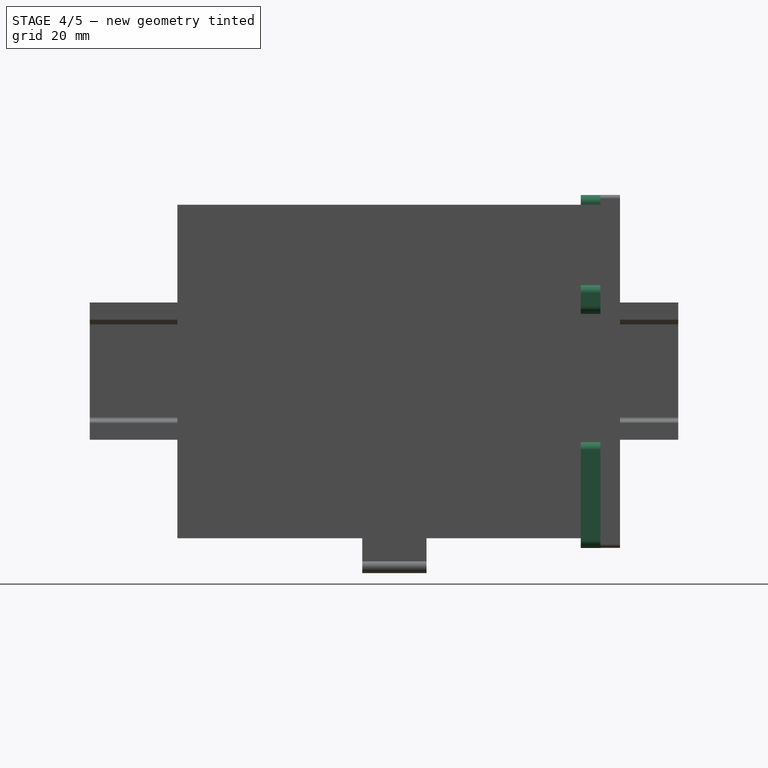
[diagram: stage 4 of 5 — right view after this stage's code; geometry added in this stage tinted green]
FEATURE [Sketcher::SketchObject] Sketch006
  FullyConstrained = false
  Placement = pos=(0,0,0) rot=(1,0,0;1.5708rad)
  sketch-geometry (21):
    g0: LineSegment StartX=-6e-16 StartY=0 StartZ=0 EndX=49 EndY=0 EndZ=0
    g1: ArcOfCircle CenterX=49 CenterY=2 CenterZ=0 NormalX=0 NormalY=0 NormalZ=1 AngleXU=0 Radius=2 StartAngle=4.71239 EndAngle=6.28319
    g2: LineSegment StartX=51 StartY=2 StartZ=0 EndX=51 EndY=25 EndZ=0
    g3: LineSegment StartX=49 StartY=27 StartZ=0 EndX=45 EndY=27 EndZ=0
    g4: LineSegment StartX=45 StartY=27 StartZ=0 EndX=45 EndY=62.6 EndZ=0
    g5: LineSegment StartX=45 StartY=62.6 StartZ=0 EndX=46.5 EndY=62.6 EndZ=0
    g6: LineSegment StartX=46.5 StartY=62.6 StartZ=0 EndX=46.5 EndY=61.7 EndZ=0
    g7: LineSegment StartX=48.5 StartY=59.7 StartZ=0 EndX=49 EndY=59.7 EndZ=0
    g8: LineSegment StartX=51 StartY=61.7 StartZ=0 EndX=51 EndY=65 EndZ=0
    g9: LineSegment StartX=49 StartY=67 StartZ=0 EndX=47 EndY=67 EndZ=0
    g10: LineSegment StartX=45 StartY=69 StartZ=0 EndX=45 EndY=88 EndZ=0
    g11: LineSegment StartX=43 StartY=90 StartZ=0 EndX=0 EndY=90 EndZ=0
    g12: LineSegment StartX=-1 StartY=1 StartZ=0 EndX=-1 EndY=89 EndZ=0
    g13: ArcOfCircle CenterX=-4e-16 CenterY=1 CenterZ=0 NormalX=0 NormalY=0 NormalZ=1 AngleXU=0 Radius=1 StartAngle=3.14159 EndAngle=4.71239
    g14: ArcOfCircle CenterX=49 CenterY=25 CenterZ=0 NormalX=0 NormalY=0 NormalZ=1 AngleXU=0 Radius=2 StartAngle=0 EndAngle=1.5708
    g15: ArcOfCircle CenterX=48.5 CenterY=61.7 CenterZ=0 NormalX=0 NormalY=0 NormalZ=1 AngleXU=0 Radius=2 StartAngle=3.14159 EndAngle=4.71239
    g16: ArcOfCircle CenterX=49 CenterY=61.7 CenterZ=0 NormalX=0 NormalY=0 NormalZ=1 AngleXU=0 Radius=2 StartAngle=4.71239 EndAngle=6.28319
    g17: ArcOfCircle CenterX=49 CenterY=65 CenterZ=0 NormalX=0 NormalY=0 NormalZ=1 AngleXU=0 Radius=2 StartAngle=0 EndAngle=1.5708
    g18: ArcOfCircle CenterX=47 CenterY=69 CenterZ=0 NormalX=0 NormalY=0 NormalZ=1 AngleXU=0 Radius=2 StartAngle=3.14159 EndAngle=4.71239
    g19: ArcOfCircle CenterX=43 CenterY=88 CenterZ=0 NormalX=0 NormalY=0 NormalZ=1 AngleXU=0 Radius=2 StartAngle=0 EndAngle=1.5708
    g20: ArcOfCircle CenterX=8e-16 CenterY=89 CenterZ=0 NormalX=0 NormalY=0 NormalZ=1 AngleXU=0 Radius=1 StartAngle=1.5708 EndAngle=3.14159
  constraints (45):
    c: Coincident(g0,g-1)
    c: Horizontal(g0)
    c: Distance(g0) = 49
    c: Coincident(g1,g0)
    c: Radius(g1) = 2
    c: Vertical(g2)
    c: Horizontal(g3)
    c: Vertical(g4)
    c: Horizontal(g5)
    c: Vertical(g6)
    c: Horizontal(g7)
    c: Vertical(g8)
    c: Horizontal(g9)
    c: Vertical(g10)
    c: Vertical(g12)
    c: Coincident(g13,g0)
    c: Coincident(g14,g2)
    c: Coincident(g15,g6)
    c: Coincident(g16,g7)
    c: Coincident(g17,g8)
    c: Coincident(g18,g9)
    c: Coincident(g19,g10)
    c: Coincident(g20,g11)
    c: Coincident(g12,g13)
    c: Horizontal(g11)
    c: Radius(g13) = 1
    c: Coincident(g4,g3)
    c: Coincident(g6,g5)
    c: Coincident(g5,g4)
    c: Radius(g14) = 2
    c: Distance(g4) = 35.6
    c: Distance(g5) = 1.5
    c: Distance(g6) = 0.9
    c: Radius(g15) = 2
    c: Radius(g18) = 2
    c: Radius(g17) = 2
    c: Radius(g16) = 2
    c: Distance(g2) = 23
    c: Distance(g3) = 4
    c: Distance(g7) = 0.5
    c: Distance(g8) = 3.3
    c: Radius(g19) = 2
    c: Radius(g20) = 1
    c: Distance(g9) = 2
    c: Distance(g10) = 19
FEATURE [Sketcher::SketchObject] Sketch008
  FullyConstrained = true
  sketch-geometry (7):
    g0: LineSegment StartX=0 StartY=-5.00042 StartZ=0 EndX=0 EndY=0 EndZ=0
    g1: LineSegment StartX=0 StartY=0 StartZ=0 EndX=-3.14912 EndY=0 EndZ=0
    g2: LineSegment StartX=-3.14912 StartY=0 StartZ=0 EndX=-3.14912 EndY=-0.3 EndZ=0
    g3: LineSegment StartX=-3.14912 StartY=-0.3 StartZ=0 EndX=-1.75 EndY=-3.30042 EndZ=0
    g4: LineSegment StartX=-0.85 StartY=-3.30042 StartZ=0 EndX=-0.85 EndY=-5.00042 EndZ=0
    g5: LineSegment StartX=-0.85 StartY=-5.00042 StartZ=0 EndX=0 EndY=-5.00042 EndZ=0
    g6: LineSegment StartX=-0.85 StartY=-3.30042 StartZ=0 EndX=-1.75 EndY=-3.30042 EndZ=0
  constraints (20):
    c: Vertical(g0)
    c: Coincident(g1,g0)
    c: Horizontal(g1)
    c: Coincident(g2,g1)
    c: Vertical(g2)
    c: Coincident(g3,g2)
    c: Vertical(g4)
    c: Coincident(g5,g4)
    c: Horizontal(g5)
    c: Distance(g5) = 0.85
    c: Distance(g3) = 3.3106
    c: Coincident(g6,g4)
    c: Coincident(g6,g3)
    c: Horizontal(g6)
    c: Angle(g6,g3) = 2.00713
    c: Distance(g6) = 0.9
    c: Distance(g2) = 0.3
    c: Distance(g4) = 1.7
    c: Coincident(g0,g5)
    c: Coincident(g0,g-1)
FEATURE [Sketcher::SketchObject] Sketch007
  FullyConstrained = true
  sketch-geometry (7):
    g0: LineSegment StartX=0 StartY=-5.00042 StartZ=0 EndX=0 EndY=0 EndZ=0
    g1: LineSegment StartX=0 StartY=0 StartZ=0 EndX=-3.14912 EndY=0 EndZ=0
    g2: LineSegment StartX=-3.14912 StartY=0 StartZ=0 EndX=-3.14912 EndY=-0.3 EndZ=0
    g3: LineSegment StartX=-3.14912 StartY=-0.3 StartZ=0 EndX=-1.75 EndY=-3.30042 EndZ=0
    g4: LineSegment StartX=-0.85 StartY=-3.30042 StartZ=0 EndX=-0.85 EndY=-5.00042 EndZ=0
    g5: LineSegment StartX=-0.85 StartY=-5.00042 StartZ=0 EndX=0 EndY=-5.00042 EndZ=0
    g6: LineSegment StartX=-0.85 StartY=-3.30042 StartZ=0 EndX=-1.75 EndY=-3.30042 EndZ=0
  constraints (20):
    c: Vertical(g0)
    c: Coincident(g1,g0)
    c: Horizontal(g1)
    c: Coincident(g2,g1)
    c: Vertical(g2)
    c: Coincident(g3,g2)
    c: Vertical(g4)
    c: Coincident(g5,g4)
    c: Horizontal(g5)
    c: Distance(g5) = 0.85
    c: Distance(g3) = 3.3106
    c: Coincident(g6,g4)
    c: Coincident(g6,g3)
    c: Horizontal(g6)
    c: Angle(g6,g3) = 2.00713
    c: Distance(g6) = 0.9
    c: Distance(g2) = 0.3
    c: Distance(g4) = 1.7
    c: Coincident(g0,g5)
    c: Coincident(g0,g-1)
FEATURE [Part::Extrusion] Extrude002
  Base = -> Sketch006
  Dir = (0,-1,3e-16)
  DirMode = 2
  FaceMakerClass = Part::FaceMakerBullseye
  LengthFwd = 5
  LengthRev = 0
  Solid = true
  Symmetric = false
FEATURE [Part::Revolution] Revolve004
  Angle = 360
  Axis = (0,1,0)
  AxisLink = -> Sketch008 [Edge3]
  Base = (0,0,0)
  FaceMakerClass = Part::FaceMakerBullseye
  Placement = pos=(8.85,0,85.9) rot=(0,0,1;0rad)
  Solid = true
  Source = -> Sketch008
  Symmetric = false
FEATURE [Part::Revolution] Revolve005
  Angle = 360
  Axis = (0,1,0)
  AxisLink = -> Sketch007 [Edge3]
  Base = (0,0,0)
  FaceMakerClass = Part::FaceMakerBullseye
  Placement = pos=(34.45,0,4.1) rot=(0,0,1;0rad)
  Solid = true
  Source = -> Sketch007
  Symmetric = false
FEATURE [Sketcher::SketchObject] Sketch009
  FullyConstrained = true
  sketch-geometry (7):
    g0: LineSegment StartX=0 StartY=-5.00042 StartZ=0 EndX=0 EndY=0 EndZ=0
    g1: LineSegment StartX=0 StartY=0 StartZ=0 EndX=-3.14912 EndY=0 EndZ=0
    g2: LineSegment StartX=-3.14912 StartY=0 StartZ=0 EndX=-3.14912 EndY=-0.3 EndZ=0
    g3: LineSegment StartX=-3.14912 StartY=-0.3 StartZ=0 EndX=-1.75 EndY=-3.30042 EndZ=0
    g4: LineSegment StartX=-0.85 StartY=-3.30042 StartZ=0 EndX=-0.85 EndY=-5.00042 EndZ=0
    g5: LineSegment StartX=-0.85 StartY=-5.00042 StartZ=0 EndX=0 EndY=-5.00042 EndZ=0
    g6: LineSegment StartX=-0.85 StartY=-3.30042 StartZ=0 EndX=-1.75 EndY=-3.30042 EndZ=0
  constraints (20):
    c: Vertical(g0)
    c: Coincident(g1,g0)
    c: Horizontal(g1)
    c: Coincident(g2,g1)
    c: Vertical(g2)
    c: Coincident(g3,g2)
    c: Vertical(g4)
    c: Coincident(g5,g4)
    c: Horizontal(g5)
    c: Distance(g5) = 0.85
    c: Distance(g3) = 3.3106
    c: Coincident(g6,g4)
    c: Coincident(g6,g3)
    c: Horizontal(g6)
    c: Angle(g6,g3) = 2.00713
    c: Distance(g6) = 0.9
    c: Distance(g2) = 0.3
    c: Distance(g4) = 1.7
    c: Coincident(g0,g5)
    c: Coincident(g0,g-1)
FEATURE [Sketcher::SketchObject] Sketch010
  FullyConstrained = true
  sketch-geometry (7):
    g0: LineSegment StartX=0 StartY=-5.00042 StartZ=0 EndX=0 EndY=0 EndZ=0
    g1: LineSegment StartX=0 StartY=0 StartZ=0 EndX=-3.14912 EndY=0 EndZ=0
    g2: LineSegment StartX=-3.14912 StartY=0 StartZ=0 EndX=-3.14912 EndY=-0.3 EndZ=0
    g3: LineSegment StartX=-3.14912 StartY=-0.3 StartZ=0 EndX=-1.75 EndY=-3.30042 EndZ=0
    g4: LineSegment StartX=-0.85 StartY=-3.30042 StartZ=0 EndX=-0.85 EndY=-5.00042 EndZ=0
    g5: LineSegment StartX=-0.85 StartY=-5.00042 StartZ=0 EndX=0 EndY=-5.00042 EndZ=0
    g6: LineSegment StartX=-0.85 StartY=-3.30042 StartZ=0 EndX=-1.75 EndY=-3.30042 EndZ=0
  constraints (20):
    c: Vertical(g0)
    c: Coincident(g1,g0)
    c: Horizontal(g1)
    c: Coincident(g2,g1)
    c: Vertical(g2)
    c: Coincident(g3,g2)
    c: Vertical(g4)
    c: Coincident(g5,g4)
    c: Horizontal(g5)
    c: Distance(g5) = 0.85
    c: Distance(g3) = 3.3106
    c: Coincident(g6,g4)
    c: Coincident(g6,g3)
    c: Horizontal(g6)
    c: Angle(g6,g3) = 2.00713
    c: Distance(g6) = 0.9
    c: Distance(g2) = 0.3
    c: Distance(g4) = 1.7
    c: Coincident(g0,g5)
    c: Coincident(g0,g-1)
FEATURE [Sketcher::SketchObject] Sketch011
  FullyConstrained = false
  Placement = pos=(0,0,0) rot=(1,0,0;1.5708rad)
  sketch-geometry (12):
    g0: LineSegment StartX=1.2 StartY=2.2 StartZ=0 EndX=3.4 EndY=2.2 EndZ=0
    g1: LineSegment StartX=3.4 StartY=2.2 StartZ=0 EndX=3.4 EndY=87.8 EndZ=0
    g2: LineSegment StartX=3.4 StartY=87.8 StartZ=0 EndX=1.2 EndY=87.8 EndZ=0
    g3: LineSegment StartX=1.2 StartY=87.8 StartZ=0 EndX=1.2 EndY=2.2 EndZ=0
    g4: LineSegment StartX=14.3 StartY=2.2 StartZ=0 EndX=16.5 EndY=2.2 EndZ=0
    g5: LineSegment StartX=16.5 StartY=2.2 StartZ=0 EndX=16.5 EndY=87.8 EndZ=0
    g6: LineSegment StartX=16.5 StartY=87.8 StartZ=0 EndX=14.3 EndY=87.8 EndZ=0
    g7: LineSegment StartX=14.3 StartY=87.8 StartZ=0 EndX=14.3 EndY=2.2 EndZ=0
    g8: LineSegment StartX=27.4 StartY=2.2 StartZ=0 EndX=29.6 EndY=2.2 EndZ=0
    g9: LineSegment StartX=29.6 StartY=2.2 StartZ=0 EndX=29.6 EndY=87.8 EndZ=0
    g10: LineSegment StartX=29.6 StartY=87.8 StartZ=0 EndX=27.4 EndY=87.8 EndZ=0
    g11: LineSegment StartX=27.4 StartY=87.8 StartZ=0 EndX=27.4 EndY=2.2 EndZ=0
  constraints (30):
    c: Horizontal(g0)
    c: Coincident(g1,g0)
    c: Vertical(g1)
    c: Coincident(g2,g1)
    c: Horizontal(g2)
    c: Coincident(g3,g2)
    c: Vertical(g3)
    c: Distance(g3) = 85.6
    c: Distance(g0) = 2.2
    c: Horizontal(g4)
    c: Coincident(g5,g4)
    c: Vertical(g5)
    c: Coincident(g6,g5)
    c: Horizontal(g6)
    c: Coincident(g7,g6)
    c: Vertical(g7)
    c: Equal(g3,g7) = 85.6
    c: Equal(g0,g4) = 2.2
    c: Horizontal(g8)
    c: Coincident(g9,g8)
    c: Vertical(g9)
    c: Coincident(g10,g9)
    c: Horizontal(g10)
    c: Coincident(g11,g10)
    c: Vertical(g11)
    c: Coincident(g4,g7)
    c: Coincident(g3,g0)
    c: Coincident(g8,g11)
    c: Distance(g11) = 85.6
    c: Distance(g8) = 2.2
FEATURE [Part::Extrusion] Extrude003
  Base = -> Sketch011
  Dir = (0,-1,3e-16)
  DirMode = 2
  FaceMakerClass = Part::FaceMakerBullseye
  LengthFwd = 2.8
  LengthRev = 0
  Placement = pos=(0,-2.2,0) rot=(0,0,1;0rad)
  Solid = true
  Symmetric = false
FEATURE [Part::Cut] Cut005
  Base = -> Extrude002
  Tool = -> Extrude003
FEATURE [Part::Revolution] Revolve007
  Angle = 360
  Axis = (0,1,0)
  AxisLink = -> Sketch009 [Edge3]
  Base = (0,0,0)
  FaceMakerClass = Part::FaceMakerBullseye
  Placement = pos=(34.45,0,85.9) rot=(0,0,1;0rad)
  Solid = true
  Source = -> Sketch009
  Symmetric = false
FEATURE [Part::Revolution] Revolve006
  Angle = 360
  Axis = (0,1,0)
  AxisLink = -> Sketch010 [Edge3]
  Base = (0,0,0)
  FaceMakerClass = Part::FaceMakerBullseye
  Placement = pos=(8.85,0,4.1) rot=(0,0,1;0rad)
  Solid = true
  Source = -> Sketch010
  Symmetric = false
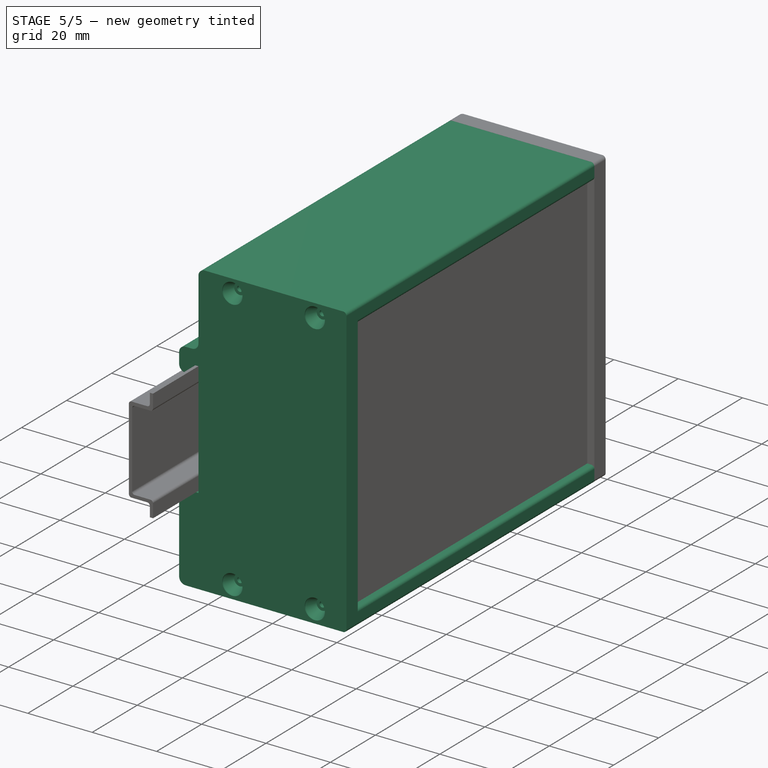
[diagram: stage 5 of 5 — iso view after this stage's code; geometry added in this stage tinted green]
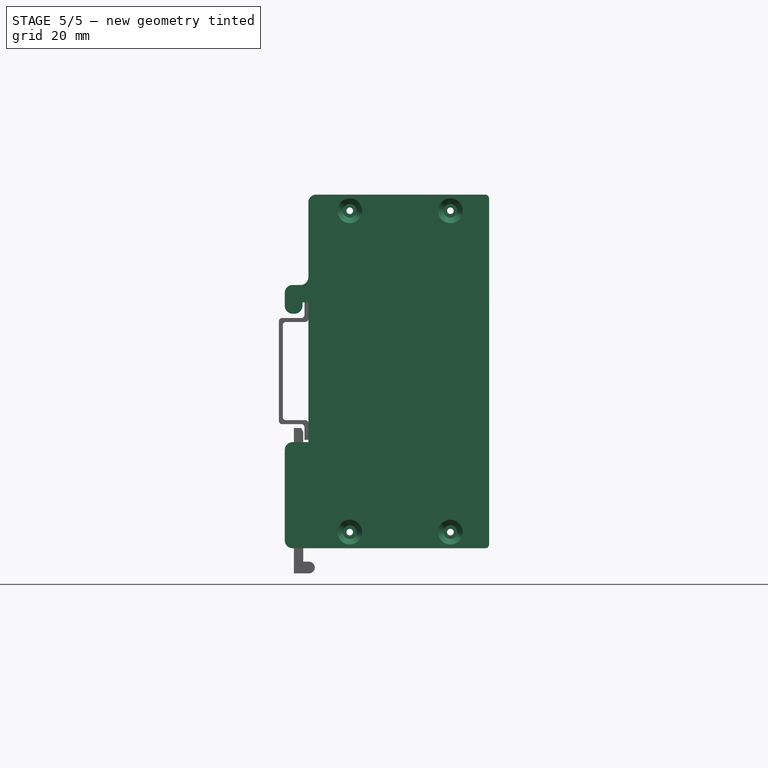
[diagram: stage 5 of 5 — front view after this stage's code; geometry added in this stage tinted green]
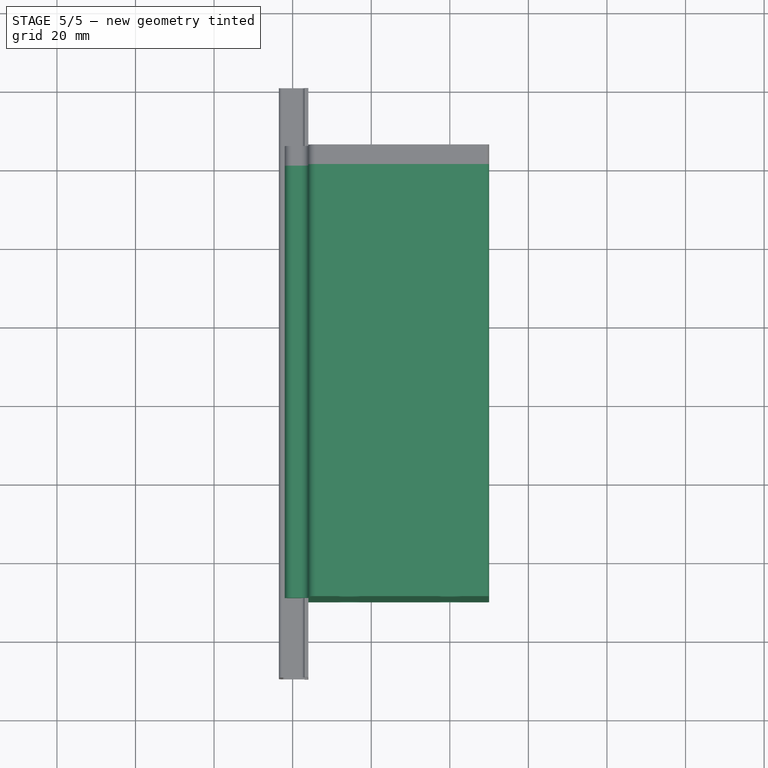
[diagram: stage 5 of 5 — top view after this stage's code; geometry added in this stage tinted green]
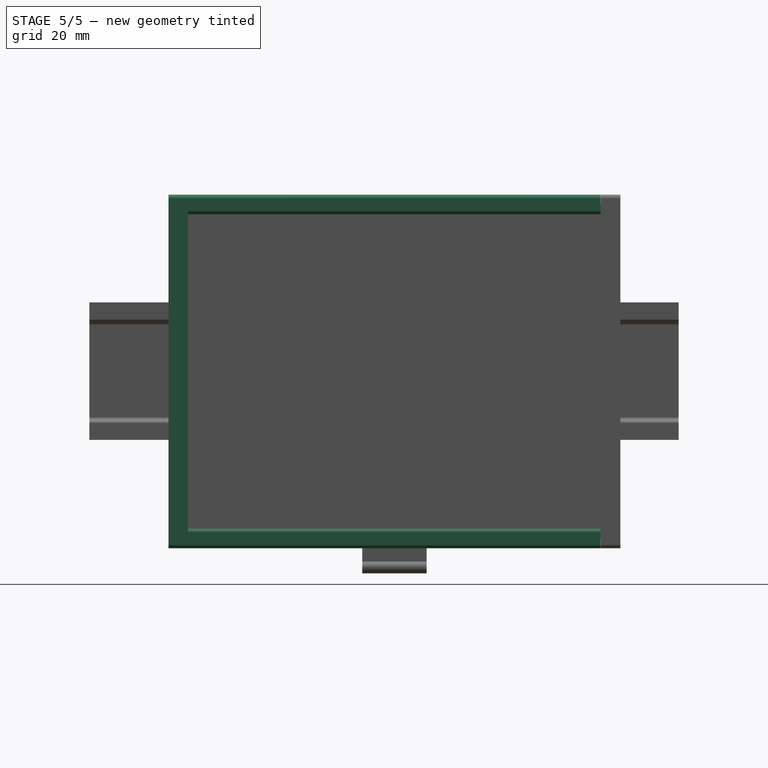
[diagram: stage 5 of 5 — right view after this stage's code; geometry added in this stage tinted green]
FEATURE [Sketcher::SketchObject] Sketch
  FullyConstrained = false
  Placement = pos=(0,0,0) rot=(1,0,0;1.5708rad)
  sketch-geometry (67):
    g0: LineSegment StartX=-5.5e-15 StartY=-2e-16 StartZ=0 EndX=49 EndY=-2e-16 EndZ=0
    g1: LineSegment StartX=50 StartY=4 StartZ=0 EndX=50 EndY=1 EndZ=0
    g2: ArcOfCircle CenterX=49 CenterY=1 CenterZ=0 NormalX=0 NormalY=0 NormalZ=1 AngleXU=0 Radius=1 StartAngle=4.71239 EndAngle=6.28319
    g3: ArcOfCircle CenterX=49 CenterY=4 CenterZ=0 NormalX=0 NormalY=0 NormalZ=1 AngleXU=0 Radius=1 StartAngle=0 EndAngle=1.5708
    g4: LineSegment StartX=49 StartY=5 StartZ=0 EndX=47.8 EndY=5 EndZ=0
    g5: LineSegment StartX=47.8 StartY=5 StartZ=0 EndX=47.8 EndY=2.2 EndZ=0
    g6: LineSegment StartX=47.8 StartY=2.2 StartZ=0 EndX=45.6 EndY=2.2 EndZ=0
    g7: LineSegment StartX=45.6 StartY=2.2 StartZ=0 EndX=45.6 EndY=5 EndZ=0
    g8: LineSegment StartX=45.6 StartY=5 StartZ=0 EndX=43.04 EndY=5 EndZ=0
    g9: GeomPoint X=40.1467 Y=4.1 Z=0
    g10: Circle CenterX=40.1467 CenterY=4.1 CenterZ=0 NormalX=0 NormalY=0 NormalZ=1 AngleXU=0 Radius=0.85
    g11: ArcOfCircle CenterX=40.1467 CenterY=4.1 CenterZ=0 NormalX=0 NormalY=0 NormalZ=1 AngleXU=0 Radius=3.03 StartAngle=0.30158 EndAngle=2.84001
    g12: LineSegment StartX=37.2535 StartY=5 StartZ=0 EndX=34.6935 EndY=5 EndZ=0
    g13: GeomPoint X=14.5402 Y=4.1 Z=0
    g14: Circle CenterX=14.5402 CenterY=4.1 CenterZ=0 NormalX=0 NormalY=0 NormalZ=1 AngleXU=0 Radius=0.85
    g15: ArcOfCircle CenterX=14.5402 CenterY=4.1 CenterZ=0 NormalX=0 NormalY=0 NormalZ=1 AngleXU=0 Radius=3.03 StartAngle=0.30158 EndAngle=2.84001
    g16: LineSegment StartX=34.6935 StartY=5 StartZ=0 EndX=34.6935 EndY=2.2 EndZ=0
    g17: LineSegment StartX=34.6935 StartY=2.2 StartZ=0 EndX=32.4935 EndY=2.2 EndZ=0
    g18: LineSegment StartX=32.4935 StartY=2.2 StartZ=0 EndX=32.4935 EndY=5 EndZ=0
    g19: LineSegment StartX=32.4935 StartY=5 StartZ=0 EndX=21.5935 EndY=5 EndZ=0
    g20: LineSegment StartX=21.5935 StartY=5 StartZ=0 EndX=21.5935 EndY=2.2 EndZ=0
    g21: LineSegment StartX=21.5935 StartY=2.2 StartZ=0 EndX=19.3935 EndY=2.2 EndZ=0
    g22: LineSegment StartX=19.3935 StartY=2.2 StartZ=0 EndX=19.3935 EndY=5 EndZ=0
    g23: LineSegment StartX=19.3935 StartY=5 StartZ=0 EndX=17.4335 EndY=5 EndZ=0
    g24: LineSegment StartX=11.647 StartY=5 StartZ=0 EndX=9.987 EndY=5 EndZ=0
    g25: ArcOfCircle CenterX=9.987 CenterY=6 CenterZ=0 NormalX=0 NormalY=0 NormalZ=1 AngleXU=0 Radius=1 StartAngle=3.14159 EndAngle=4.71239
    g26: LineSegment StartX=8.987 StartY=6 StartZ=0 EndX=8.987 EndY=84 EndZ=0
    g27: ArcOfCircle CenterX=9.987 CenterY=84 CenterZ=0 NormalX=0 NormalY=0 NormalZ=1 AngleXU=0 Radius=1 StartAngle=1.5708 EndAngle=3.14159
    g28: LineSegment StartX=9.987 StartY=85 StartZ=0 EndX=11.647 EndY=85 EndZ=0
    g29: Circle CenterX=14.5402 CenterY=85.9 CenterZ=0 NormalX=0 NormalY=0 NormalZ=1 AngleXU=0 Radius=0.85
    g30: ArcOfCircle CenterX=14.5402 CenterY=85.9 CenterZ=0 NormalX=0 NormalY=0 NormalZ=1 AngleXU=0 Radius=3.03 StartAngle=3.44317 EndAngle=5.9816
    g31: LineSegment StartX=17.4335 StartY=85 StartZ=0 EndX=19.3935 EndY=85 EndZ=0
    g32: LineSegment StartX=19.3935 StartY=85 StartZ=0 EndX=19.3935 EndY=87.8 EndZ=0
    g33: LineSegment StartX=19.3935 StartY=87.8 StartZ=0 EndX=21.5935 EndY=87.8 EndZ=0
    g34: LineSegment StartX=21.5935 StartY=87.8 StartZ=0 EndX=21.5935 EndY=85 EndZ=0
    g35: LineSegment StartX=21.5935 StartY=85 StartZ=0 EndX=32.4935 EndY=85 EndZ=0
    g36: LineSegment StartX=32.4935 StartY=85 StartZ=0 EndX=32.4935 EndY=87.8 EndZ=0
    g37: LineSegment StartX=32.4935 StartY=87.8 StartZ=0 EndX=34.6935 EndY=87.8 EndZ=0
    g38: LineSegment StartX=34.6935 StartY=87.8 StartZ=0 EndX=34.6935 EndY=85 EndZ=0
    g39: LineSegment StartX=34.6935 StartY=85 StartZ=0 EndX=37.2535 EndY=85 EndZ=0
    g40: Circle CenterX=40.1467 CenterY=85.9 CenterZ=0 NormalX=0 NormalY=0 NormalZ=1 AngleXU=0 Radius=0.85
    g41: ArcOfCircle CenterX=40.1467 CenterY=85.9 CenterZ=0 NormalX=0 NormalY=0 NormalZ=1 AngleXU=0 Radius=3.03 StartAngle=3.44317 EndAngle=5.9816
    g42: LineSegment StartX=43.04 StartY=85 StartZ=0 EndX=45.6 EndY=85 EndZ=0
    g43: LineSegment StartX=45.6 StartY=85 StartZ=0 EndX=45.6 EndY=87.8 EndZ=0
    g44: LineSegment StartX=45.6 StartY=87.8 StartZ=0 EndX=47.8 EndY=87.8 EndZ=0
    g45: LineSegment StartX=47.8 StartY=87.8 StartZ=0 EndX=47.8 EndY=85 EndZ=0
    g46: LineSegment StartX=47.8 StartY=85 StartZ=0 EndX=49 EndY=85 EndZ=0
    g47: ArcOfCircle CenterX=49 CenterY=86 CenterZ=0 NormalX=0 NormalY=0 NormalZ=1 AngleXU=0 Radius=1 StartAngle=4.71239 EndAngle=6.28319
    g48: LineSegment StartX=50 StartY=86 StartZ=0 EndX=50 EndY=89 EndZ=0
    g49: ArcOfCircle CenterX=49 CenterY=89 CenterZ=0 NormalX=0 NormalY=0 NormalZ=1 AngleXU=0 Radius=1 StartAngle=0 EndAngle=1.5708
    g50: LineSegment StartX=49 StartY=90 StartZ=0 EndX=6 EndY=90 EndZ=0
    g51: ArcOfCircle CenterX=6 CenterY=88 CenterZ=0 NormalX=0 NormalY=0 NormalZ=1 AngleXU=0 Radius=2 StartAngle=1.5708 EndAngle=3.14159
    g52: LineSegment StartX=4 StartY=88 StartZ=0 EndX=4 EndY=69 EndZ=0
    g53: ArcOfCircle CenterX=2 CenterY=69 CenterZ=0 NormalX=0 NormalY=0 NormalZ=1 AngleXU=0 Radius=2 StartAngle=4.71239 EndAngle=6.28319
    g54: LineSegment StartX=2 StartY=67 StartZ=0 EndX=6.1271e-12 EndY=67 EndZ=0
    g55: LineSegment StartX=-2 StartY=65 StartZ=0 EndX=-2 EndY=61.7 EndZ=0
    g56: LineSegment StartX=6.1182e-12 StartY=59.7 StartZ=0 EndX=0.5 EndY=59.7 EndZ=0
    g57: ArcOfCircle CenterX=6.127e-12 CenterY=65 CenterZ=0 NormalX=0 NormalY=0 NormalZ=1 AngleXU=0 Radius=2 StartAngle=1.5708 EndAngle=3.14159
    g58: ArcOfCircle CenterX=6.1186e-12 CenterY=61.7 CenterZ=0 NormalX=0 NormalY=0 NormalZ=1 AngleXU=0 Radius=2 StartAngle=3.14159 EndAngle=4.71239
    g59: ArcOfCircle CenterX=0.5 CenterY=61.7 CenterZ=0 NormalX=0 NormalY=0 NormalZ=1 AngleXU=0 Radius=2 StartAngle=4.71239 EndAngle=6.28319
    g60: LineSegment StartX=2.5 StartY=61.7 StartZ=0 EndX=2.5 EndY=62.6 EndZ=0
    g61: LineSegment StartX=2.5 StartY=62.6 StartZ=0 EndX=4 EndY=62.6 EndZ=0
    g62: LineSegment StartX=4 StartY=62.6 StartZ=0 EndX=4 EndY=27 EndZ=0
    g63: LineSegment StartX=4 StartY=27 StartZ=0 EndX=3.6e-15 EndY=27 EndZ=0
    g64: LineSegment StartX=-2 StartY=25 StartZ=0 EndX=-2 EndY=2 EndZ=0
    g65: ArcOfCircle CenterX=3.1e-15 CenterY=25 CenterZ=0 NormalX=0 NormalY=0 NormalZ=1 AngleXU=0 Radius=2 StartAngle=1.5708 EndAngle=3.14159
    g66: ArcOfCircle CenterX=-5.1e-15 CenterY=2 CenterZ=0 NormalX=0 NormalY=0 NormalZ=1 AngleXU=0 Radius=2 StartAngle=3.14159 EndAngle=4.71239
  constraints (160):
    c: Coincident(g0,g-1)
    c: Horizontal(g0)
    c: Distance(g0) = 49
    c: Vertical(g1)
    c: Distance(g1) = 3
    c: Coincident(g2,g0)
    c: Coincident(g2,g1)
    c: Radius(g2) = 1
    c: Coincident(g3,g1)
    c: Radius(g3) = 1
    c: Horizontal(g4)
    c: Coincident(g5,g4)
    c: Vertical(g5)
    c: Coincident(g6,g5)
    c: Horizontal(g6)
    c: Coincident(g7,g6)
    c: Vertical(g7)
    c: Coincident(g8,g7)
    c: Horizontal(g8)
    c: Distance(g4) = 1.2
    c: Distance(g5) = 2.8
    c: Distance(g6) = 2.2
    c: Distance(g8) = 2.56
    c: Distance(g7) = 2.8
    c: Coincident(g10,g9)
    c: Radius(g10) = 0.85
    c: Coincident(g11,g10)
    c: Coincident(g11,g8)
    c: Radius(g11) = 3.03
    c: Horizontal(g12)
    c: Coincident(g14,g13)
    c: Equal(g10,g14) = 0.85
    c: Coincident(g15,g14)
    c: Equal(g11,g15) = 3.03
    c: Coincident(g16,g12)
    c: Vertical(g16)
    c: Coincident(g17,g16)
    c: Horizontal(g17)
    c: Coincident(g18,g17)
    c: Vertical(g18)
    c: Coincident(g19,g18)
    c: Horizontal(g19)
    c: Coincident(g20,g19)
    c: Coincident(g21,g20)
    c: Horizontal(g21)
    c: Vertical(g22)
    c: Coincident(g23,g22)
    c: Horizontal(g23)
    c: Vertical(g20)
    c: Distance(g17) = 2.2
    c: Distance(g21) = 2.2
    c: Distance(g19) = 10.9
    c: Distance(g12) = 2.56
    c: Coincident(g22,g21)
    c: Equal(g7,g16)
    c: Equal(g18,g20)
    c: Distance(g18) = 2.8
    c: Distance(g22) = 2.8
    c: Distance(g23) = 1.96
    c: Horizontal(g24)
    c: Distance(g24) = 1.66
    c: Coincident(g25,g24)
    c: Radius(g25) = 1
    c: Vertical(g26)
    c: Coincident(g27,g26)
    c: Radius(g27) = 1
    c: Horizontal(g28)
    c: Coincident(g31,g30)
    c: Horizontal(g31)
    c: Coincident(g32,g31)
    c: Vertical(g32)
    c: Coincident(g33,g32)
    c: Horizontal(g33)
    c: Coincident(g34,g33)
    c: Vertical(g34)
    c: Coincident(g35,g34)
    c: Horizontal(g35)
    c: Coincident(g36,g35)
    c: Vertical(g36)
    c: Coincident(g37,g36)
    c: Horizontal(g37)
    c: Coincident(g38,g37)
    c: Vertical(g38)
    c: Coincident(g39,g38)
    c: Horizontal(g39)
    c: Coincident(g41,g40)
    c: Coincident(g41,g39)
    c: Coincident(g42,g41)
    c: Horizontal(g42)
    c: Coincident(g43,g42)
    c: Vertical(g43)
    c: Coincident(g44,g43)
    c: Horizontal(g44)
    c: Coincident(g45,g44)
    c: Vertical(g45)
    c: Coincident(g46,g45)
    c: Horizontal(g46)
    c: Coincident(g47,g46)
    c: Radius(g47) = 1
    c: Vertical(g48)
    c: Coincident(g29,g30)
    c: Coincident(g30,g28)
    c: Distance(g28) = 1.66
    c: Distance(g31) = 1.96
    c: Distance(g32) = 2.8
    c: Distance(g34) = 2.8
    c: Distance(g36) = 2.8
    c: Distance(g38) = 2.8
    c: Radius(g30) = 3.03
    c: Radius(g29) = 0.85
    c: Distance(g33) = 2.2
    c: Distance(g37) = 2.2
    c: Distance(g35) = 10.9
    c: Distance(g44) = 2.2
    c: Distance(g43) = 2.8
    c: Distance(g45) = 2.8
    c: Distance(g42) = 2.56
    c: Distance(g39) = 2.56
    c: Radius(g40) = 0.85
    c: Radius(g41) = 3.03
    c: Distance(g46) = 1.2
    c: Distance(g48) = 3
    c: Coincident(g49,g48)
    c: Radius(g49) = 1
    c: Distance(g26) = 78
    c: Horizontal(g50)
    c: Distance(g50) = 43
    c: Coincident(g51,g50)
    c: Radius(g51) = 2
    c: Vertical(g52)
    c: Coincident(g53,g52)
    c: Radius(g53) = 2
    c: Horizontal(g54)
    c: Vertical(g55)
    c: Horizontal(g56)
    c: Coincident(g57,g54)
    c: Coincident(g58,g55)
    c: Radius(g57) = 2
    c: Radius(g58) = 2
    c: Coincident(g59,g56)
    c: Radius(g59) = 2
    c: Vertical(g60)
    c: Coincident(g61,g60)
    c: Horizontal(g61)
    c: Distance(g60) = 0.9
    c: Distance(g52) = 19
    c: Distance(g54) = 2
    c: Distance(g55) = 3.3
    c: Distance(g56) = 0.5
    c: Distance(g61) = 1.5
    c: Coincident(g62,g61)
    c: Vertical(g62)
    c: Distance(g62) = 35.6
    c: Horizontal(g63)
    c: Vertical(g64)
    c: Coincident(g65,g63)
    c: Coincident(g66,g64)
    c: Radius(g65) = 2
    c: Radius(g66) = 2
    c: Coincident(g63,g62)
FEATURE [Part::Extrusion] Extrude
  Base = -> Sketch
  Dir = (0,-1,2e-16)
  DirMode = 2
  FaceMakerClass = Part::FaceMakerBullseye
  LengthFwd = 105
  LengthRev = 0
  Solid = true
  Symmetric = false
FEATURE [Sketcher::SketchObject] Sketch001
  FullyConstrained = true
  Placement = pos=(0,0,0) rot=(0.57735,0.57735,0.57735;2.0944rad)
  sketch-geometry (16):
    g0: LineSegment StartX=0 StartY=0 StartZ=0 EndX=0 EndY=7.78 EndZ=0
    g1: LineSegment StartX=0 StartY=7.78 StartZ=0 EndX=1.62635 EndY=9.40634 EndZ=0
    g2: LineSegment StartX=1.62635 StartY=9.40634 StartZ=0 EndX=1.77634e-05 EndY=11.0327 EndZ=0
    g3: LineSegment StartX=1.77634e-05 StartY=11.0327 StartZ=0 EndX=1.77634e-05 EndY=16.5527 EndZ=0
    g4: LineSegment StartX=1.77634e-05 StartY=16.5527 StartZ=0 EndX=1.62635 EndY=18.179 EndZ=0
    g5: LineSegment StartX=1.62635 StartY=18.179 StartZ=0 EndX=-1.3e-15 EndY=19.8054 EndZ=0
    g6: LineSegment StartX=-17 StartY=19.8054 StartZ=0 EndX=-18.6263 EndY=18.179 EndZ=0
    g7: LineSegment StartX=-18.6263 StartY=18.179 StartZ=0 EndX=-17 EndY=16.5527 EndZ=0
    g8: LineSegment StartX=-17 StartY=16.5527 StartZ=0 EndX=-17 EndY=11.0327 EndZ=0
    g9: LineSegment StartX=-17 StartY=11.0327 StartZ=0 EndX=-18.6263 EndY=9.40635 EndZ=0
    g10: LineSegment StartX=-18.6263 StartY=9.40635 StartZ=0 EndX=-17 EndY=7.78 EndZ=0
    g11: LineSegment StartX=-17 StartY=7.78 StartZ=0 EndX=-17 EndY=0 EndZ=0
    g12: LineSegment StartX=-17 StartY=0 StartZ=0 EndX=0 EndY=0 EndZ=0
    g13: LineSegment StartX=-1.6e-15 StartY=19.8054 StartZ=0 EndX=-1.6e-15 EndY=27.2854 EndZ=0
    g14: LineSegment StartX=-1.6e-15 StartY=27.2854 StartZ=0 EndX=-17 EndY=27.2854 EndZ=0
    g15: LineSegment StartX=-17 StartY=27.2854 StartZ=0 EndX=-17 EndY=19.8054 EndZ=0
  constraints (47):
    c: Coincident(g0,g-1)
    c: Vertical(g0)
    c: Coincident(g1,g0)
    c: Coincident(g2,g1)
    c: Coincident(g3,g2)
    c: Vertical(g3)
    c: Coincident(g4,g3)
    c: Coincident(g7,g6)
    c: Coincident(g8,g7)
    c: Coincident(g10,g9)
    c: Coincident(g11,g10)
    c: Vertical(g11)
    c: Coincident(g12,g11)
    c: Coincident(g12,g0)
    c: Coincident(g13,g5)
    c: Vertical(g13)
    c: Coincident(g14,g13)
    c: Horizontal(g14)
    c: Angle(g2,g1) = 1.5708
    c: Angle(g5,g4) = 1.5708
    c: Angle(g7,g6) = 1.5708
    c: Angle(g10,g9) = 1.5708
    c: Coincident(g4,g5)
    c: Coincident(g15,g6)
    c: Coincident(g14,g15)
    c: Coincident(g9,g8)
    c: Horizontal(g12)
    c: Vertical(g15)
    c: Vertical(g8)
    c: Distance(g2) = 2.3
    c: Distance(g1) = 2.3
    c: Distance(g5) = 2.3
    c: Distance(g4) = 2.3
    c: Distance(g6) = 2.3
    c: Distance(g7) = 2.3
    c: Distance(g9) = 2.3
    c: Distance(g10) = 2.3
    c: Distance(g12) = 17
    c: Distance(g14) = 17
    c: Distance(g15) = 7.48
    c: Distance(g13) = 7.48
    c: Distance(g8) = 5.52
    c: Distance(g3) = 5.52
    c: Distance(g11) = 7.78
    c: Distance(g0) = 7.78
    c: Angle(g10,g11) = 2.35619
    c: Angle(g7,g8) = 2.35619
FEATURE [Part::Extrusion] Extrude001
  Base = -> Sketch001
  Dir = (1,0,0)
  DirMode = 2
  FaceMakerClass = Part::FaceMakerBullseye
  LengthFwd = 3
  LengthRev = 0
  Placement = pos=(0,-44,0) rot=(0,0,1;0rad)
  Solid = true
  Symmetric = false
FEATURE [Part::Cut] Cut  label="корпус"
  Base = -> Extrude
  Tool = -> Extrude001
FEATURE [Part::Cut] Cut009
  Base = -> Cut005
  Tool = -> Revolve006
FEATURE [Part::Cut] Cut006
  Base = -> Cut009
  Tool = -> Revolve007
FEATURE [Part::Cut] Cut008
  Base = -> Cut006
  Tool = -> Revolve004
FEATURE [Part::Cut] Cut007  label="крышка Левая"
  Base = -> Cut008
  Placement = pos=(49,-110,0) rot=(0,0,1;3.14159rad)
  Tool = -> Revolve005
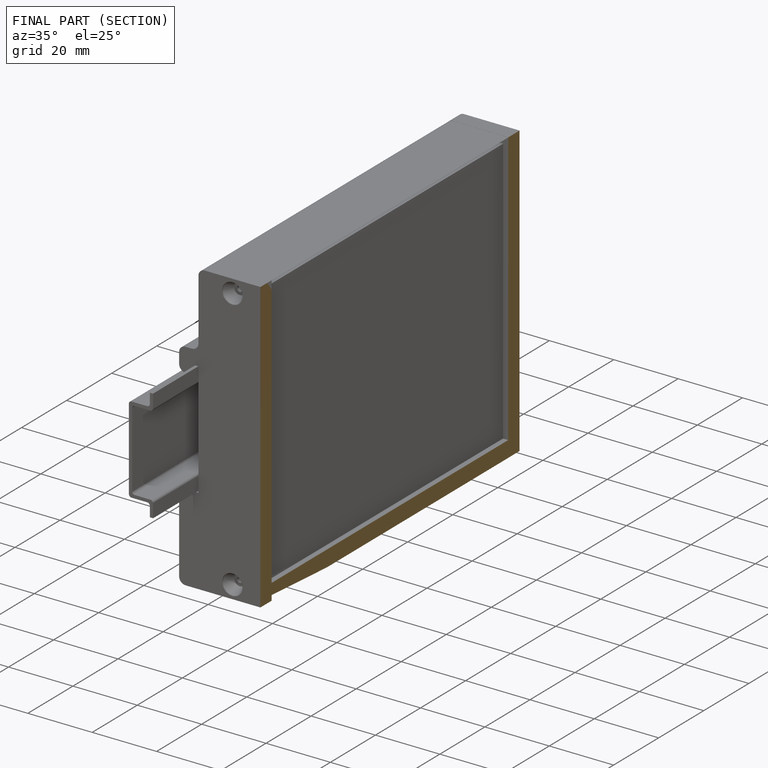
[diagram: finished part — half-section view (interior)]
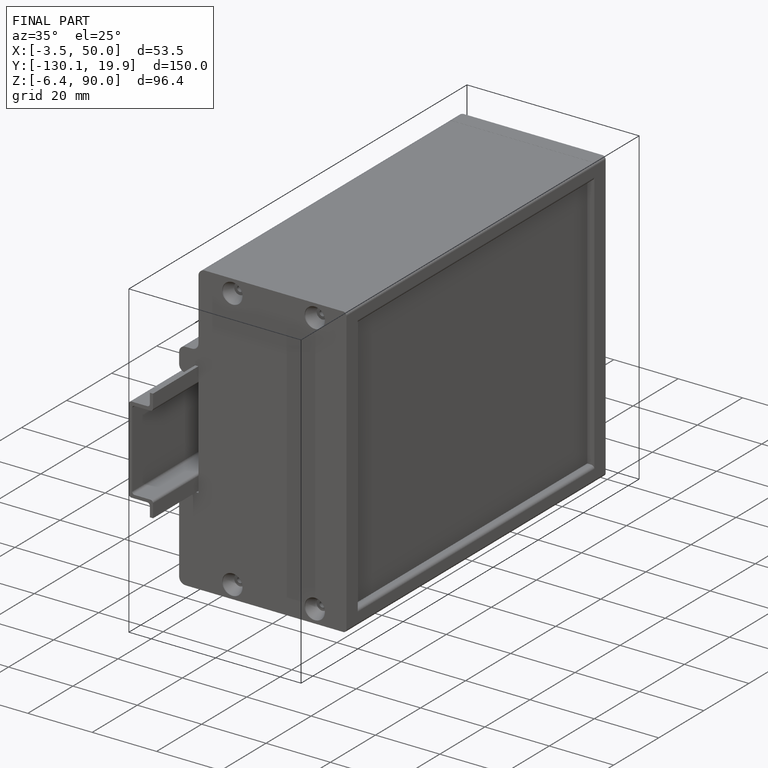
[diagram: finished part — iso view with bounding-box wireframe]
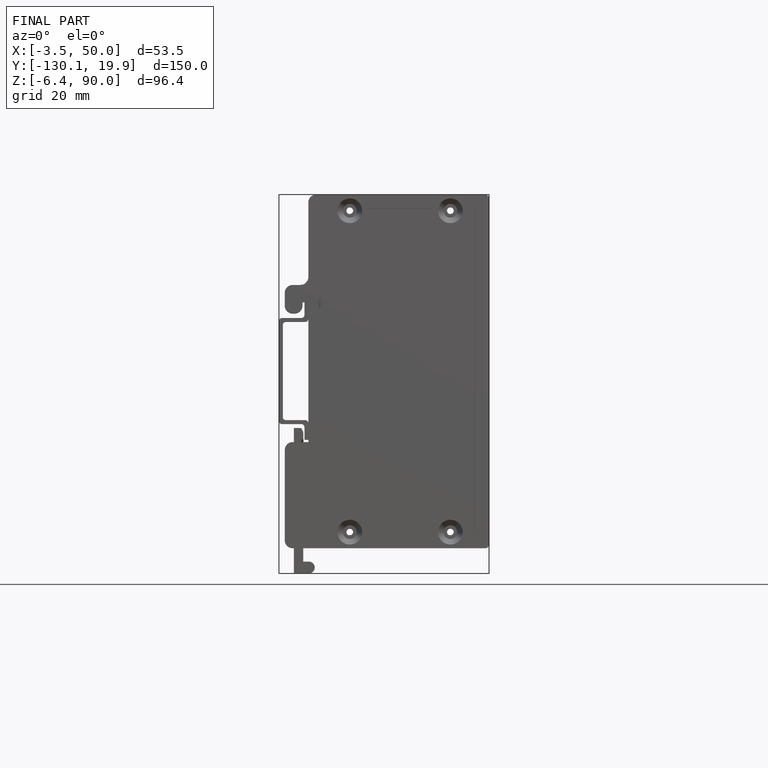
[diagram: finished part — front view with bounding-box wireframe]
